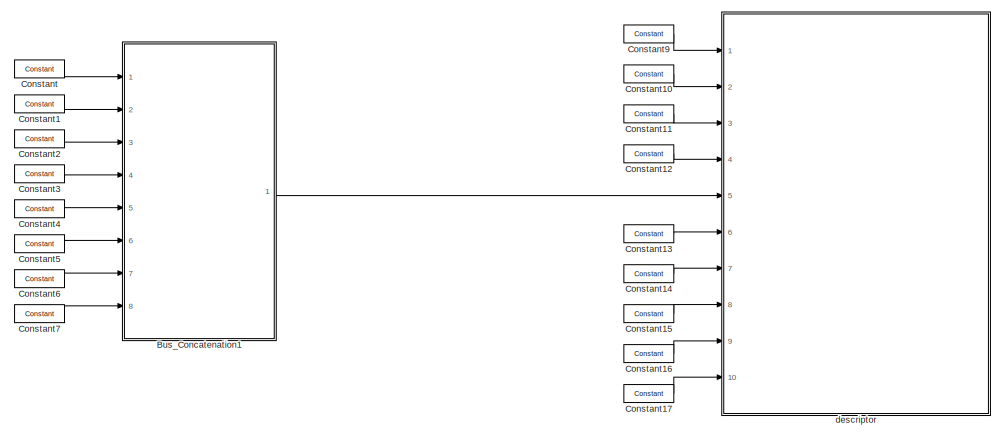
[diagram: root canvas - part 1/2, full width, top band]
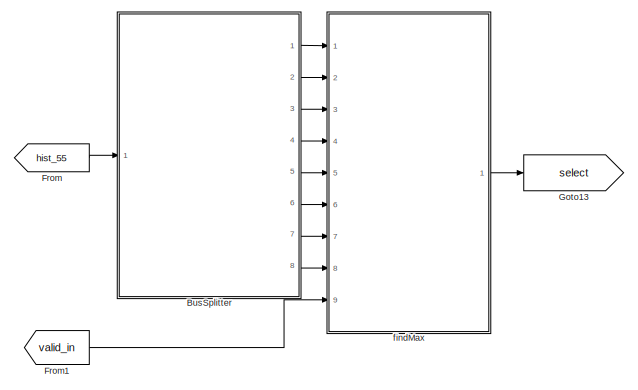
[diagram: root canvas - part 2/2, bottom right region]
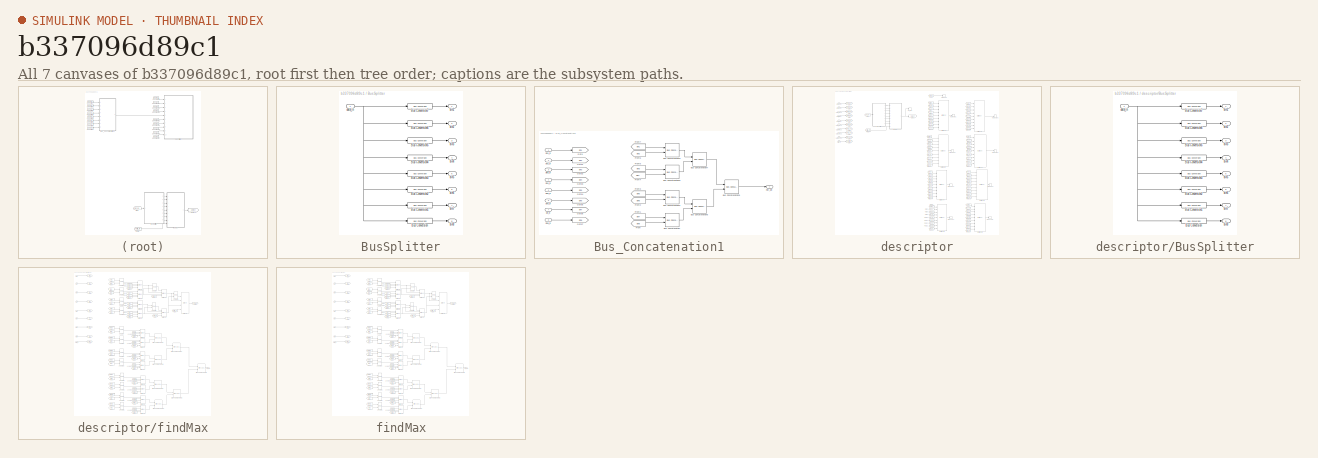
[diagram: thumbnail index - all 7 canvases of the model, root first then tree order]
MODEL slx_b337096d89c1
KIND model
CONFIG AbsTol = auto
CONFIG FixedStep = auto
CONFIG InitFcn = %% DSPBuilder Start\nalt_dspbuilder_update_model(bdroot)\n%% DSPBuilder End\n
CONFIG MaxStep = auto
CONFIG MinStep = auto
CONFIG RelTol = 1e-3
CONFIG SampleTimeConstraint = Unconstrained
CONFIG Solver = ode45
CONFIG SolverMode = Auto
CONFIG SolverName = ode45
CONFIG StartTime = 0.0
CONFIG StopTime = 10.0
BLOCK [SubSystem] BusSplitter
  Ports = [1, 8]
  RequestExecContextInheritance = off
BLOCK [Reference] BusSplitter/Bus Conversion  REF=allblocks_alteradspbuilder2/Bus Conversion
  BusType = Unsigned Integer
  Ports = [1, 1]
  SourceBlock = allblocks_alteradspbuilder2/Bus Conversion
  SourceType = Bus Conversion AlteraBlockset
  bitToConnectToOutputLSB = 0
  bwl = 16
  bwr = 1
  ibwl = 128
  ibwr = 1
  pipeline_display = 0
  round = off
  saturate = off
BLOCK [Reference] BusSplitter/Bus Conversion1  REF=allblocks_alteradspbuilder2/Bus Conversion
  BusType = Unsigned Integer
  Ports = [1, 1]
  SourceBlock = allblocks_alteradspbuilder2/Bus Conversion
  SourceType = Bus Conversion AlteraBlockset
  bitToConnectToOutputLSB = 16
  bwl = 16
  bwr = 1
  ibwl = 128
  ibwr = 1
  pipeline_display = 0
  round = off
  saturate = off
BLOCK [Reference] BusSplitter/Bus Conversion2  REF=allblocks_alteradspbuilder2/Bus Conversion
  BusType = Unsigned Integer
  Ports = [1, 1]
  SourceBlock = allblocks_alteradspbuilder2/Bus Conversion
  SourceType = Bus Conversion AlteraBlockset
  bitToConnectToOutputLSB = 32
  bwl = 16
  bwr = 1
  ibwl = 128
  ibwr = 1
  pipeline_display = 0
  round = off
  saturate = off
BLOCK [Reference] BusSplitter/Bus Conversion3  REF=allblocks_alteradspbuilder2/Bus Conversion
  BusType = Unsigned Integer
  Ports = [1, 1]
  SourceBlock = allblocks_alteradspbuilder2/Bus Conversion
  SourceType = Bus Conversion AlteraBlockset
  bitToConnectToOutputLSB = 48
  bwl = 16
  bwr = 1
  ibwl = 128
  ibwr = 1
  pipeline_display = 0
  round = off
  saturate = off
BLOCK [Reference] BusSplitter/Bus Conversion4  REF=allblocks_alteradspbuilder2/Bus Conversion
  BusType = Unsigned Integer
  Ports = [1, 1]
  SourceBlock = allblocks_alteradspbuilder2/Bus Conversion
  SourceType = Bus Conversion AlteraBlockset
  bitToConnectToOutputLSB = 64
  bwl = 16
  bwr = 1
  ibwl = 128
  ibwr = 1
  pipeline_display = 0
  round = off
  saturate = off
BLOCK [Reference] BusSplitter/Bus Conversion5  REF=allblocks_alteradspbuilder2/Bus Conversion
  BusType = Unsigned Integer
  Ports = [1, 1]
  SourceBlock = allblocks_alteradspbuilder2/Bus Conversion
  SourceType = Bus Conversion AlteraBlockset
  bitToConnectToOutputLSB = 80
  bwl = 16
  bwr = 1
  ibwl = 128
  ibwr = 1
  pipeline_display = 0
  round = off
  saturate = off
BLOCK [Reference] BusSplitter/Bus Conversion6  REF=allblocks_alteradspbuilder2/Bus Conversion
  BusType = Unsigned Integer
  Ports = [1, 1]
  SourceBlock = allblocks_alteradspbuilder2/Bus Conversion
  SourceType = Bus Conversion AlteraBlockset
  bitToConnectToOutputLSB = 96
  bwl = 16
  bwr = 1
  ibwl = 128
  ibwr = 1
  pipeline_display = 0
  round = off
  saturate = off
BLOCK [Reference] BusSplitter/Bus Conversion7  REF=allblocks_alteradspbuilder2/Bus Conversion
  BusType = Unsigned Integer
  Ports = [1, 1]
  SourceBlock = allblocks_alteradspbuilder2/Bus Conversion
  SourceType = Bus Conversion AlteraBlockset
  bitToConnectToOutputLSB = 112
  bwl = 16
  bwr = 1
  ibwl = 128
  ibwr = 1
  pipeline_display = 0
  round = off
  saturate = off
BLOCK [Outport] BusSplitter/bin1
  IconDisplay = Port number
BLOCK [Outport] BusSplitter/bin2
  IconDisplay = Port number
  Port = 2
BLOCK [Outport] BusSplitter/bin3
  IconDisplay = Port number
  Port = 3
BLOCK [Outport] BusSplitter/bin4
  IconDisplay = Port number
  Port = 4
BLOCK [Outport] BusSplitter/bin5
  IconDisplay = Port number
  Port = 5
BLOCK [Outport] BusSplitter/bin6
  IconDisplay = Port number
  Port = 6
BLOCK [Outport] BusSplitter/bin7
  IconDisplay = Port number
  Port = 7
BLOCK [Outport] BusSplitter/bin8
  IconDisplay = Port number
  Port = 8
BLOCK [Inport] BusSplitter/data_in
  IconDisplay = Port number
BLOCK [SubSystem] Bus_Concatenation1
  Ports = [8, 1]
  RequestExecContextInheritance = off
BLOCK [Reference] Bus_Concatenation1/Bus Concatenation  REF=allblocks_alteradspbuilder2/Bus Concatenation
  Ports = [2, 1]
  SourceBlock = allblocks_alteradspbuilder2/Bus Concatenation
  SourceType = Bus Concatenate AlteraBlockset
  awidth = 16
  bwidth = 16
  isSigned = off
  pipeline_display = 0
BLOCK [Reference] Bus_Concatenation1/Bus Concatenation1  REF=allblocks_alteradspbuilder2/Bus Concatenation
  Ports = [2, 1]
  SourceBlock = allblocks_alteradspbuilder2/Bus Concatenation
  SourceType = Bus Concatenate AlteraBlockset
  awidth = 16
  bwidth = 16
  isSigned = off
  pipeline_display = 0
BLOCK [Reference] Bus_Concatenation1/Bus Concatenation2  REF=allblocks_alteradspbuilder2/Bus Concatenation
  Ports = [2, 1]
  SourceBlock = allblocks_alteradspbuilder2/Bus Concatenation
  SourceType = Bus Concatenate AlteraBlockset
  awidth = 16
  bwidth = 16
  isSigned = off
  pipeline_display = 0
BLOCK [Reference] Bus_Concatenation1/Bus Concatenation3  REF=allblocks_alteradspbuilder2/Bus Concatenation
  Ports = [2, 1]
  SourceBlock = allblocks_alteradspbuilder2/Bus Concatenation
  SourceType = Bus Concatenate AlteraBlockset
  awidth = 16
  bwidth = 16
  isSigned = off
  pipeline_display = 0
BLOCK [Reference] Bus_Concatenation1/Bus Concatenation7  REF=allblocks_alteradspbuilder2/Bus Concatenation
  Ports = [2, 1]
  SourceBlock = allblocks_alteradspbuilder2/Bus Concatenation
  SourceType = Bus Concatenate AlteraBlockset
  awidth = 32
  bwidth = 32
  isSigned = off
  pipeline_display = 0
BLOCK [Reference] Bus_Concatenation1/Bus Concatenation8  REF=allblocks_alteradspbuilder2/Bus Concatenation
  Ports = [2, 1]
  SourceBlock = allblocks_alteradspbuilder2/Bus Concatenation
  SourceType = Bus Concatenate AlteraBlockset
  awidth = 32
  bwidth = 32
  isSigned = off
  pipeline_display = 0
BLOCK [Reference] Bus_Concatenation1/Bus Concatenation9  REF=allblocks_alteradspbuilder2/Bus Concatenation
  Ports = [2, 1]
  SourceBlock = allblocks_alteradspbuilder2/Bus Concatenation
  SourceType = Bus Concatenate AlteraBlockset
  awidth = 64
  bwidth = 64
  isSigned = off
  pipeline_display = 0
BLOCK [From] Bus_Concatenation1/From
  GotoTag = bin8
BLOCK [From] Bus_Concatenation1/From1
  GotoTag = bin7
BLOCK [From] Bus_Concatenation1/From2
  GotoTag = bin6
BLOCK [From] Bus_Concatenation1/From3
  GotoTag = bin5
BLOCK [From] Bus_Concatenation1/From4
  GotoTag = bin4
BLOCK [From] Bus_Concatenation1/From5
  GotoTag = bin3
BLOCK [From] Bus_Concatenation1/From6
  GotoTag = bin2
BLOCK [From] Bus_Concatenation1/From7
  GotoTag = bin1
BLOCK [Goto] Bus_Concatenation1/Goto
  GotoTag = bin1
BLOCK [Goto] Bus_Concatenation1/Goto1
  GotoTag = bin2
BLOCK [Goto] Bus_Concatenation1/Goto2
  GotoTag = bin3
BLOCK [Goto] Bus_Concatenation1/Goto3
  GotoTag = bin4
BLOCK [Goto] Bus_Concatenation1/Goto4
  GotoTag = bin5
BLOCK [Goto] Bus_Concatenation1/Goto5
  GotoTag = bin6
BLOCK [Goto] Bus_Concatenation1/Goto6
  GotoTag = bin7
BLOCK [Goto] Bus_Concatenation1/Goto7
  GotoTag = bin8
BLOCK [Inport] Bus_Concatenation1/biin3_in
  IconDisplay = Port number
  Port = 3
BLOCK [Inport] Bus_Concatenation1/bin1_in
  IconDisplay = Port number
BLOCK [Inport] Bus_Concatenation1/bin2_in
  IconDisplay = Port number
  Port = 2
BLOCK [Inport] Bus_Concatenation1/bin4_in
  IconDisplay = Port number
  Port = 4
BLOCK [Inport] Bus_Concatenation1/bin5_in
  IconDisplay = Port number
  Port = 5
BLOCK [Inport] Bus_Concatenation1/bin6_in
  IconDisplay = Port number
  Port = 6
BLOCK [Inport] Bus_Concatenation1/bin8_in
  IconDisplay = Port number
  Port = 8
BLOCK [Inport] Bus_Concatenation1/bin_in
  IconDisplay = Port number
  Port = 7
BLOCK [Outport] Bus_Concatenation1/hist_bin
  IconDisplay = Port number
BLOCK [Reference] Constant  REF=allblocks_alteradspbuilder2/Constant
  BusType = Unsigned Integer
  Ports = [0, 1]
  SourceBlock = allblocks_alteradspbuilder2/Constant
  SourceType = Constant AlteraBlockset
  SpecifyClock = off
  allowFloatingPointOverride = on
  bwl = 8
  bwr = 0
  logFile = <userpath>\Desktop\final_sift_fpga\tb_test\test_Constant.fixedpointlog
  logOutputs = off
  mask_cst = 1
  roundMode = Truncate
  satMode = Wrap
BLOCK [Reference] Constant1  REF=allblocks_alteradspbuilder2/Constant
  BusType = Unsigned Integer
  Ports = [0, 1]
  SourceBlock = allblocks_alteradspbuilder2/Constant
  SourceType = Constant AlteraBlockset
  SpecifyClock = off
  allowFloatingPointOverride = on
  bwl = 8
  bwr = 0
  logFile = <userpath>\Desktop\final_sift_fpga\tb_test\test_Constant1.fixedpointlog
  logOutputs = off
  mask_cst = 2
  roundMode = Truncate
  satMode = Wrap
BLOCK [Reference] Constant10  REF=allblocks_alteradspbuilder2/Constant
  BusType = Unsigned Integer
  Ports = [0, 1]
  SourceBlock = allblocks_alteradspbuilder2/Constant
  SourceType = Constant AlteraBlockset
  SpecifyClock = off
  allowFloatingPointOverride = on
  bwl = 8
  bwr = 0
  logFile = <userpath>\Desktop\final_sift_fpga\tb_test\test_Constant10.fixedpointlog
  logOutputs = off
  mask_cst = 2
  roundMode = Truncate
  satMode = Wrap
BLOCK [Reference] Constant11  REF=allblocks_alteradspbuilder2/Constant
  BusType = Unsigned Integer
  Ports = [0, 1]
  SourceBlock = allblocks_alteradspbuilder2/Constant
  SourceType = Constant AlteraBlockset
  SpecifyClock = off
  allowFloatingPointOverride = on
  bwl = 8
  bwr = 0
  logFile = <userpath>\Desktop\final_sift_fpga\tb_test\test_Constant11.fixedpointlog
  logOutputs = off
  mask_cst = 1
  roundMode = Truncate
  satMode = Wrap
BLOCK [Reference] Constant12  REF=allblocks_alteradspbuilder2/Constant
  BusType = Unsigned Integer
  Ports = [0, 1]
  SourceBlock = allblocks_alteradspbuilder2/Constant
  SourceType = Constant AlteraBlockset
  SpecifyClock = off
  allowFloatingPointOverride = on
  bwl = 8
  bwr = 0
  logFile = <userpath>\Desktop\final_sift_fpga\tb_test\test_Constant12.fixedpointlog
  logOutputs = off
  mask_cst = 4
  roundMode = Truncate
  satMode = Wrap
BLOCK [Reference] Constant13  REF=allblocks_alteradspbuilder2/Constant
  BusType = Unsigned Integer
  Ports = [0, 1]
  SourceBlock = allblocks_alteradspbuilder2/Constant
  SourceType = Constant AlteraBlockset
  SpecifyClock = off
  allowFloatingPointOverride = on
  bwl = 8
  bwr = 0
  logFile = <userpath>\Desktop\final_sift_fpga\tb_test\test_Constant13.fixedpointlog
  logOutputs = off
  mask_cst = 0
  roundMode = Truncate
  satMode = Wrap
BLOCK [Reference] Constant14  REF=allblocks_alteradspbuilder2/Constant
  BusType = Unsigned Integer
  Ports = [0, 1]
  SourceBlock = allblocks_alteradspbuilder2/Constant
  SourceType = Constant AlteraBlockset
  SpecifyClock = off
  allowFloatingPointOverride = on
  bwl = 8
  bwr = 0
  logFile = <userpath>\Desktop\final_sift_fpga\tb_test\test_Constant14.fixedpointlog
  logOutputs = off
  mask_cst = 5
  roundMode = Truncate
  satMode = Wrap
BLOCK [Reference] Constant15  REF=allblocks_alteradspbuilder2/Constant
  BusType = Unsigned Integer
  Ports = [0, 1]
  SourceBlock = allblocks_alteradspbuilder2/Constant
  SourceType = Constant AlteraBlockset
  SpecifyClock = off
  allowFloatingPointOverride = on
  bwl = 8
  bwr = 0
  logFile = <userpath>\Desktop\final_sift_fpga\tb_test\test_Constant15.fixedpointlog
  logOutputs = off
  mask_cst = 6
  roundMode = Truncate
  satMode = Wrap
BLOCK [Reference] Constant16  REF=allblocks_alteradspbuilder2/Constant
  BusType = Unsigned Integer
  Ports = [0, 1]
  SourceBlock = allblocks_alteradspbuilder2/Constant
  SourceType = Constant AlteraBlockset
  SpecifyClock = off
  allowFloatingPointOverride = on
  bwl = 8
  bwr = 0
  logFile = <userpath>\Desktop\final_sift_fpga\tb_test\test_Constant16.fixedpointlog
  logOutputs = off
  mask_cst = 7
  roundMode = Truncate
  satMode = Wrap
BLOCK [Reference] Constant17  REF=allblocks_alteradspbuilder2/Constant
  BusType = Single Bit
  Ports = [0, 1]
  SourceBlock = allblocks_alteradspbuilder2/Constant
  SourceType = Constant AlteraBlockset
  SpecifyClock = off
  allowFloatingPointOverride = on
  bwl = 8
  bwr = 0
  logFile = <userpath>\Desktop\final_sift_fpga\tb_test\test_Constant17.fixedpointlog
  logOutputs = off
  mask_cst = 1
  roundMode = Truncate
  satMode = Wrap
BLOCK [Reference] Constant2  REF=allblocks_alteradspbuilder2/Constant
  BusType = Unsigned Integer
  Ports = [0, 1]
  SourceBlock = allblocks_alteradspbuilder2/Constant
  SourceType = Constant AlteraBlockset
  SpecifyClock = off
  allowFloatingPointOverride = on
  bwl = 8
  bwr = 0
  logFile = <userpath>\Desktop\final_sift_fpga\tb_test\test_Constant2.fixedpointlog
  logOutputs = off
  mask_cst = 3
  roundMode = Truncate
  satMode = Wrap
BLOCK [Reference] Constant3  REF=allblocks_alteradspbuilder2/Constant
  BusType = Unsigned Integer
  Ports = [0, 1]
  SourceBlock = allblocks_alteradspbuilder2/Constant
  SourceType = Constant AlteraBlockset
  SpecifyClock = off
  allowFloatingPointOverride = on
  bwl = 8
  bwr = 0
  logFile = <userpath>\Desktop\final_sift_fpga\tb_test\test_Constant3.fixedpointlog
  logOutputs = off
  mask_cst = 4
  roundMode = Truncate
  satMode = Wrap
BLOCK [Reference] Constant4  REF=allblocks_alteradspbuilder2/Constant
  BusType = Unsigned Integer
  Ports = [0, 1]
  SourceBlock = allblocks_alteradspbuilder2/Constant
  SourceType = Constant AlteraBlockset
  SpecifyClock = off
  allowFloatingPointOverride = on
  bwl = 8
  bwr = 0
  logFile = <userpath>\Desktop\final_sift_fpga\tb_test\test_Constant4.fixedpointlog
  logOutputs = off
  mask_cst = 5
  roundMode = Truncate
  satMode = Wrap
BLOCK [Reference] Constant5  REF=allblocks_alteradspbuilder2/Constant
  BusType = Unsigned Integer
  Ports = [0, 1]
  SourceBlock = allblocks_alteradspbuilder2/Constant
  SourceType = Constant AlteraBlockset
  SpecifyClock = off
  allowFloatingPointOverride = on
  bwl = 8
  bwr = 0
  logFile = <userpath>\Desktop\final_sift_fpga\tb_test\test_Constant5.fixedpointlog
  logOutputs = off
  mask_cst = 1
  roundMode = Truncate
  satMode = Wrap
BLOCK [Reference] Constant6  REF=allblocks_alteradspbuilder2/Constant
  BusType = Unsigned Integer
  Ports = [0, 1]
  SourceBlock = allblocks_alteradspbuilder2/Constant
  SourceType = Constant AlteraBlockset
  SpecifyClock = off
  allowFloatingPointOverride = on
  bwl = 8
  bwr = 0
  logFile = <userpath>\Desktop\final_sift_fpga\tb_test\test_Constant6.fixedpointlog
  logOutputs = off
  mask_cst = 1
  roundMode = Truncate
  satMode = Wrap
BLOCK [Reference] Constant7  REF=allblocks_alteradspbuilder2/Constant
  BusType = Unsigned Integer
  Ports = [0, 1]
  SourceBlock = allblocks_alteradspbuilder2/Constant
  SourceType = Constant AlteraBlockset
  SpecifyClock = off
  allowFloatingPointOverride = on
  bwl = 8
  bwr = 0
  logFile = <userpath>\Desktop\final_sift_fpga\tb_test\test_Constant7.fixedpointlog
  logOutputs = off
  mask_cst = 1
  roundMode = Truncate
  satMode = Wrap
BLOCK [Reference] Constant9  REF=allblocks_alteradspbuilder2/Constant
  BusType = Unsigned Integer
  Ports = [0, 1]
  SourceBlock = allblocks_alteradspbuilder2/Constant
  SourceType = Constant AlteraBlockset
  SpecifyClock = off
  allowFloatingPointOverride = on
  bwl = 8
  bwr = 0
  logFile = C:\test_Constant9.fixedpointlog
  logOutputs = off
  mask_cst = 3
  roundMode = Truncate
  satMode = Wrap
BLOCK [From] From
  GotoTag = hist_55
BLOCK [From] From1
  GotoTag = valid_in
BLOCK [Goto] Goto13
  GotoTag = select
BLOCK [SubSystem] descriptor
  Ports = [10]
  RequestExecContextInheritance = off
BLOCK [SubSystem] descriptor/BusSplitter
  Ports = [1, 8]
  RequestExecContextInheritance = off
BLOCK [Reference] descriptor/BusSplitter/Bus Conversion  REF=allblocks_alteradspbuilder2/Bus Conversion
  BusType = Unsigned Integer
  Ports = [1, 1]
  SourceBlock = allblocks_alteradspbuilder2/Bus Conversion
  SourceType = Bus Conversion AlteraBlockset
  bitToConnectToOutputLSB = 0
  bwl = 16
  bwr = 1
  ibwl = 128
  ibwr = 1
  pipeline_display = 0
  round = off
  saturate = off
BLOCK [Reference] descriptor/BusSplitter/Bus Conversion1  REF=allblocks_alteradspbuilder2/Bus Conversion
  BusType = Unsigned Integer
  Ports = [1, 1]
  SourceBlock = allblocks_alteradspbuilder2/Bus Conversion
  SourceType = Bus Conversion AlteraBlockset
  bitToConnectToOutputLSB = 16
  bwl = 16
  bwr = 1
  ibwl = 128
  ibwr = 1
  pipeline_display = 0
  round = off
  saturate = off
BLOCK [Reference] descriptor/BusSplitter/Bus Conversion2  REF=allblocks_alteradspbuilder2/Bus Conversion
  BusType = Unsigned Integer
  Ports = [1, 1]
  SourceBlock = allblocks_alteradspbuilder2/Bus Conversion
  SourceType = Bus Conversion AlteraBlockset
  bitToConnectToOutputLSB = 32
  bwl = 16
  bwr = 1
  ibwl = 128
  ibwr = 1
  pipeline_display = 0
  round = off
  saturate = off
BLOCK [Reference] descriptor/BusSplitter/Bus Conversion3  REF=allblocks_alteradspbuilder2/Bus Conversion
  BusType = Unsigned Integer
  Ports = [1, 1]
  SourceBlock = allblocks_alteradspbuilder2/Bus Conversion
  SourceType = Bus Conversion AlteraBlockset
  bitToConnectToOutputLSB = 48
  bwl = 16
  bwr = 1
  ibwl = 128
  ibwr = 1
  pipeline_display = 0
  round = off
  saturate = off
BLOCK [Reference] descriptor/BusSplitter/Bus Conversion4  REF=allblocks_alteradspbuilder2/Bus Conversion
  BusType = Unsigned Integer
  Ports = [1, 1]
  SourceBlock = allblocks_alteradspbuilder2/Bus Conversion
  SourceType = Bus Conversion AlteraBlockset
  bitToConnectToOutputLSB = 64
  bwl = 16
  bwr = 1
  ibwl = 128
  ibwr = 1
  pipeline_display = 0
  round = off
  saturate = off
BLOCK [Reference] descriptor/BusSplitter/Bus Conversion5  REF=allblocks_alteradspbuilder2/Bus Conversion
  BusType = Unsigned Integer
  Ports = [1, 1]
  SourceBlock = allblocks_alteradspbuilder2/Bus Conversion
  SourceType = Bus Conversion AlteraBlockset
  bitToConnectToOutputLSB = 80
  bwl = 16
  bwr = 1
  ibwl = 128
  ibwr = 1
  pipeline_display = 0
  round = off
  saturate = off
BLOCK [Reference] descriptor/BusSplitter/Bus Conversion6  REF=allblocks_alteradspbuilder2/Bus Conversion
  BusType = Unsigned Integer
  Ports = [1, 1]
  SourceBlock = allblocks_alteradspbuilder2/Bus Conversion
  SourceType = Bus Conversion AlteraBlockset
  bitToConnectToOutputLSB = 96
  bwl = 16
  bwr = 1
  ibwl = 128
  ibwr = 1
  pipeline_display = 0
  round = off
  saturate = off
BLOCK [Reference] descriptor/BusSplitter/Bus Conversion7  REF=allblocks_alteradspbuilder2/Bus Conversion
  BusType = Unsigned Integer
  Ports = [1, 1]
  SourceBlock = allblocks_alteradspbuilder2/Bus Conversion
  SourceType = Bus Conversion AlteraBlockset
  bitToConnectToOutputLSB = 112
  bwl = 16
  bwr = 1
  ibwl = 128
  ibwr = 1
  pipeline_display = 0
  round = off
  saturate = off
BLOCK [Outport] descriptor/BusSplitter/bin1
  IconDisplay = Port number
BLOCK [Outport] descriptor/BusSplitter/bin2
  IconDisplay = Port number
  Port = 2
BLOCK [Outport] descriptor/BusSplitter/bin3
  IconDisplay = Port number
  Port = 3
BLOCK [Outport] descriptor/BusSplitter/bin4
  IconDisplay = Port number
  Port = 4
BLOCK [Outport] descriptor/BusSplitter/bin5
  IconDisplay = Port number
  Port = 5
BLOCK [Outport] descriptor/BusSplitter/bin6
  IconDisplay = Port number
  Port = 6
BLOCK [Outport] descriptor/BusSplitter/bin7
  IconDisplay = Port number
  Port = 7
BLOCK [Outport] descriptor/BusSplitter/bin8
  IconDisplay = Port number
  Port = 8
BLOCK [Inport] descriptor/BusSplitter/data_in
  IconDisplay = Port number
BLOCK [From] descriptor/From
  GotoTag = hist_55
BLOCK [From] descriptor/From1
  GotoTag = valid_in
BLOCK [From] descriptor/From10
  GotoTag = select
BLOCK [From] descriptor/From100
  GotoTag = hist_105
BLOCK [From] descriptor/From101
  GotoTag = hist_100
BLOCK [From] descriptor/From102
  GotoTag = hist_50
BLOCK [From] descriptor/From103
  GotoTag = hist_00
BLOCK [From] descriptor/From104
  GotoTag = hist_05
BLOCK [From] descriptor/From105
  GotoTag = hist_010
BLOCK [From] descriptor/From106
  GotoTag = hist_510
BLOCK [From] descriptor/From108
  GotoTag = hist_105
BLOCK [From] descriptor/From109
  GotoTag = hist_100
BLOCK [From] descriptor/From11
  GotoTag = select
BLOCK [From] descriptor/From110
  GotoTag = hist_50
BLOCK [From] descriptor/From111
  GotoTag = hist_00
BLOCK [From] descriptor/From112
  GotoTag = hist_05
BLOCK [From] descriptor/From113
  GotoTag = hist_010
BLOCK [From] descriptor/From114
  GotoTag = hist_510
BLOCK [From] descriptor/From115
  GotoTag = hist_1010
BLOCK [From] descriptor/From117
  GotoTag = hist_105
BLOCK [From] descriptor/From118
  GotoTag = hist_100
BLOCK [From] descriptor/From119
  GotoTag = hist_50
BLOCK [From] descriptor/From12
  GotoTag = select
BLOCK [From] descriptor/From120
  GotoTag = hist_00
BLOCK [From] descriptor/From121
  GotoTag = hist_05
BLOCK [From] descriptor/From122
  GotoTag = hist_010
BLOCK [From] descriptor/From123
  GotoTag = hist_510
BLOCK [From] descriptor/From124
  GotoTag = hist_1010
BLOCK [From] descriptor/From126
  GotoTag = hist_105
BLOCK [From] descriptor/From127
  GotoTag = hist_100
BLOCK [From] descriptor/From128
  GotoTag = hist_50
BLOCK [From] descriptor/From129
  GotoTag = hist_00
BLOCK [From] descriptor/From13
  GotoTag = select
BLOCK [From] descriptor/From130
  GotoTag = hist_05
BLOCK [From] descriptor/From131
  GotoTag = hist_010
BLOCK [From] descriptor/From132
  GotoTag = hist_510
BLOCK [From] descriptor/From133
  GotoTag = hist_1010
BLOCK [From] descriptor/From135
  GotoTag = hist_105
BLOCK [From] descriptor/From136
  GotoTag = hist_100
BLOCK [From] descriptor/From137
  GotoTag = hist_50
BLOCK [From] descriptor/From138
  GotoTag = hist_00
BLOCK [From] descriptor/From139
  GotoTag = hist_05
BLOCK [From] descriptor/From14
  GotoTag = select
BLOCK [From] descriptor/From140
  GotoTag = hist_010
BLOCK [From] descriptor/From141
  GotoTag = hist_510
BLOCK [From] descriptor/From142
  GotoTag = hist_1010
BLOCK [From] descriptor/From15
  GotoTag = select
BLOCK [From] descriptor/From16
  GotoTag = select
BLOCK [From] descriptor/From17
  GotoTag = select
BLOCK [From] descriptor/From72
  GotoTag = hist_1010
BLOCK [From] descriptor/From73
  GotoTag = hist_105
BLOCK [From] descriptor/From74
  GotoTag = hist_100
BLOCK [From] descriptor/From75
  GotoTag = hist_50
BLOCK [From] descriptor/From76
  GotoTag = hist_00
BLOCK [From] descriptor/From77
  GotoTag = hist_05
BLOCK [From] descriptor/From78
  GotoTag = hist_010
BLOCK [From] descriptor/From79
  GotoTag = hist_510
BLOCK [From] descriptor/From80
  GotoTag = hist_55
BLOCK [From] descriptor/From81
  GotoTag = hist_1010
BLOCK [From] descriptor/From82
  GotoTag = hist_105
BLOCK [From] descriptor/From83
  GotoTag = hist_100
BLOCK [From] descriptor/From84
  GotoTag = hist_50
BLOCK [From] descriptor/From85
  GotoTag = hist_00
BLOCK [From] descriptor/From86
  GotoTag = hist_05
BLOCK [From] descriptor/From87
  GotoTag = hist_010
BLOCK [From] descriptor/From88
  GotoTag = hist_510
BLOCK [From] descriptor/From90
  GotoTag = hist_1010
BLOCK [From] descriptor/From91
  GotoTag = hist_105
BLOCK [From] descriptor/From92
  GotoTag = hist_100
BLOCK [From] descriptor/From93
  GotoTag = hist_50
BLOCK [From] descriptor/From94
  GotoTag = hist_00
BLOCK [From] descriptor/From95
  GotoTag = hist_05
BLOCK [From] descriptor/From96
  GotoTag = hist_010
BLOCK [From] descriptor/From97
  GotoTag = hist_510
BLOCK [From] descriptor/From99
  GotoTag = hist_1010
BLOCK [Goto] descriptor/Goto
  GotoTag = hist_00
BLOCK [Goto] descriptor/Goto1
  GotoTag = hist_05
BLOCK [Goto] descriptor/Goto13
  GotoTag = select
BLOCK [Goto] descriptor/Goto2
  GotoTag = hist_010
BLOCK [Goto] descriptor/Goto3
  GotoTag = hist_50
BLOCK [Goto] descriptor/Goto4
  GotoTag = hist_55
BLOCK [Goto] descriptor/Goto5
  GotoTag = hist_510
BLOCK [Goto] descriptor/Goto6
  GotoTag = hist_100
BLOCK [Goto] descriptor/Goto7
  GotoTag = hist_105
BLOCK [Goto] descriptor/Goto8
  GotoTag = hist_1010
BLOCK [Goto] descriptor/Goto9
  GotoTag = valid_in
BLOCK [Reference] descriptor/Multiplexer1  REF=allblocks_alteradspbuilder2/Multiplexer
  Ports = [9, 1]
  SourceBlock = allblocks_alteradspbuilder2/Multiplexer
  SourceType = Multiplexer AlteraBlockset
  allowFloatingPointOverride = on
  logFile = <userpath>\Desktop\final_sift_fpga\tb_test\test_descriptor_Multiplexer1.fixedpointlog
  logOutputs = off
  numInputs = 8
  oneHot = off
  pipeline = 0
  pipeline_display = 0
  use_aclr = off
  use_ena = off
BLOCK [Reference] descriptor/Multiplexer2  REF=allblocks_alteradspbuilder2/Multiplexer
  Ports = [9, 1]
  SourceBlock = allblocks_alteradspbuilder2/Multiplexer
  SourceType = Multiplexer AlteraBlockset
  allowFloatingPointOverride = on
  logFile = <userpath>\Desktop\final_sift_fpga\tb_test\test_descriptor_Multiplexer2.fixedpointlog
  logOutputs = off
  numInputs = 8
  oneHot = off
  pipeline = 0
  pipeline_display = 0
  use_aclr = off
  use_ena = off
BLOCK [Reference] descriptor/Multiplexer4  REF=allblocks_alteradspbuilder2/Multiplexer
  Ports = [9, 1]
  SourceBlock = allblocks_alteradspbuilder2/Multiplexer
  SourceType = Multiplexer AlteraBlockset
  allowFloatingPointOverride = on
  logFile = <userpath>\Desktop\final_sift_fpga\tb_test\test_descriptor_Multiplexer4.fixedpointlog
  logOutputs = off
  numInputs = 8
  oneHot = off
  pipeline = 0
  pipeline_display = 0
  use_aclr = off
  use_ena = off
BLOCK [Reference] descriptor/Multiplexer5  REF=allblocks_alteradspbuilder2/Multiplexer
  Ports = [9, 1]
  SourceBlock = allblocks_alteradspbuilder2/Multiplexer
  SourceType = Multiplexer AlteraBlockset
  allowFloatingPointOverride = on
  logFile = <userpath>\Desktop\final_sift_fpga\tb_test\test_descriptor_Multiplexer5.fixedpointlog
  logOutputs = off
  numInputs = 8
  oneHot = off
  pipeline = 0
  pipeline_display = 0
  use_aclr = off
  use_ena = off
BLOCK [Reference] descriptor/Multiplexer6  REF=allblocks_alteradspbuilder2/Multiplexer
  Ports = [9, 1]
  SourceBlock = allblocks_alteradspbuilder2/Multiplexer
  SourceType = Multiplexer AlteraBlockset
  allowFloatingPointOverride = on
  logFile = <userpath>\Desktop\final_sift_fpga\tb_test\test_descriptor_Multiplexer6.fixedpointlog
  logOutputs = off
  numInputs = 8
  oneHot = off
  pipeline = 0
  pipeline_display = 0
  use_aclr = off
  use_ena = off
BLOCK [Reference] descriptor/Multiplexer7  REF=allblocks_alteradspbuilder2/Multiplexer
  Ports = [9, 1]
  SourceBlock = allblocks_alteradspbuilder2/Multiplexer
  SourceType = Multiplexer AlteraBlockset
  allowFloatingPointOverride = on
  logFile = <userpath>\Desktop\final_sift_fpga\tb_test\test_descriptor_Multiplexer7.fixedpointlog
  logOutputs = off
  numInputs = 8
  oneHot = off
  pipeline = 0
  pipeline_display = 0
  use_aclr = off
  use_ena = off
BLOCK [Reference] descriptor/Multiplexer8  REF=allblocks_alteradspbuilder2/Multiplexer
  Ports = [9, 1]
  SourceBlock = allblocks_alteradspbuilder2/Multiplexer
  SourceType = Multiplexer AlteraBlockset
  allowFloatingPointOverride = on
  logFile = <userpath>\Desktop\final_sift_fpga\tb_test\test_descriptor_Multiplexer8.fixedpointlog
  logOutputs = off
  numInputs = 8
  oneHot = off
  pipeline = 0
  pipeline_display = 0
  use_aclr = off
  use_ena = off
BLOCK [Reference] descriptor/Multiplexer9  REF=allblocks_alteradspbuilder2/Multiplexer
  Ports = [9, 1]
  SourceBlock = allblocks_alteradspbuilder2/Multiplexer
  SourceType = Multiplexer AlteraBlockset
  allowFloatingPointOverride = on
  logFile = <userpath>\Desktop\final_sift_fpga\tb_test\test_descriptor_Multiplexer9.fixedpointlog
  logOutputs = off
  numInputs = 8
  oneHot = off
  pipeline = 0
  pipeline_display = 0
  use_aclr = off
  use_ena = off
BLOCK [TimeScope] descriptor/Time Scope
  DefaultConfigurationName = spbscopes.TimeScopeBlockCfg
  NumInputPorts = 1
  Ports = [1]
  ScopeSpecificationString = spbscopes.TimeScopeBlockCfg('CurrentConfiguration', extmgr.ConfigurationSet(extmgr.Configuration('Core','General UI',true),extmgr.Configuration('Core','Source UI',true),extmgr.Configuration('Sources','WiredSimulink',true,'DataLoggingVariableName','ScopeData1'),extmgr.Configuration('Visuals','Time Domain',true,'DisplayPropertyDefaults',struct('MinYLimReal','4.19246e+33','MaxYLimReal','6.19246e+33',...<+1423ch>
  UserDataPersistent = on
BLOCK [TimeScope] descriptor/Time Scope1
  DefaultConfigurationName = spbscopes.TimeScopeBlockCfg
  NumInputPorts = 1
  Ports = [1]
  ScopeSpecificationString = spbscopes.TimeScopeBlockCfg('CurrentConfiguration', extmgr.ConfigurationSet(extmgr.Configuration('Core','General UI',true),extmgr.Configuration('Core','Source UI',true),extmgr.Configuration('Sources','WiredSimulink',true,'DataLoggingVariableName','ScopeData2'),extmgr.Configuration('Visuals','Time Domain',true,'DisplayPropertyDefaults',struct('MinYLimReal','-0.5','MaxYLimReal','4.5','YLabelReal','A...<+1361ch>
  UserDataPersistent = on
BLOCK [TimeScope] descriptor/Time Scope2
  DefaultConfigurationName = spbscopes.TimeScopeBlockCfg
  NumInputPorts = 1
  Ports = [1]
  ScopeSpecificationString = spbscopes.TimeScopeBlockCfg('CurrentConfiguration', extmgr.ConfigurationSet(extmgr.Configuration('Core','General UI',true),extmgr.Configuration('Core','Source UI',true),extmgr.Configuration('Sources','WiredSimulink',true,'DataLoggingVariableName','ScopeData3'),extmgr.Configuration('Visuals','Time Domain',true,'DisplayPropertyDefaults',struct('MinYLimReal','0.5','MaxYLimReal','5.5','YLabelReal','Am...<+1363ch>
  UserDataPersistent = on
BLOCK [TimeScope] descriptor/Time Scope3
  DefaultConfigurationName = spbscopes.TimeScopeBlockCfg
  NumInputPorts = 1
  Ports = [1]
  ScopeSpecificationString = spbscopes.TimeScopeBlockCfg('CurrentConfiguration', extmgr.ConfigurationSet(extmgr.Configuration('Core','General UI',true),extmgr.Configuration('Core','Source UI',true),extmgr.Configuration('Sources','WiredSimulink',true,'DataLoggingVariableName','ScopeData4'),extmgr.Configuration('Visuals','Time Domain',true,'DisplayPropertyDefaults',struct('MinYLimReal','1.5','MaxYLimReal','6.5','YLabelReal','Am...<+1364ch>
  UserDataPersistent = on
BLOCK [TimeScope] descriptor/Time Scope4
  DefaultConfigurationName = spbscopes.TimeScopeBlockCfg
  NumInputPorts = 1
  Ports = [1]
  ScopeSpecificationString = spbscopes.TimeScopeBlockCfg('CurrentConfiguration', extmgr.ConfigurationSet(extmgr.Configuration('Core','General UI',true),extmgr.Configuration('Core','Source UI',true),extmgr.Configuration('Sources','WiredSimulink',true,'DataLoggingVariableName','ScopeData5'),extmgr.Configuration('Visuals','Time Domain',true,'DisplayPropertyDefaults',struct('MinYLimReal','2.5','MaxYLimReal','7.5','YLabelReal','Am...<+1363ch>
  UserDataPersistent = on
BLOCK [TimeScope] descriptor/Time Scope5
  DefaultConfigurationName = spbscopes.TimeScopeBlockCfg
  NumInputPorts = 1
  Ports = [1]
  ScopeSpecificationString = spbscopes.TimeScopeBlockCfg('CurrentConfiguration', extmgr.ConfigurationSet(extmgr.Configuration('Core','General UI',true),extmgr.Configuration('Core','Source UI',true),extmgr.Configuration('Sources','WiredSimulink',true,'DataLoggingVariableName','ScopeData6'),extmgr.Configuration('Visuals','Time Domain',true,'DisplayPropertyDefaults',struct('MinYLimReal','-0.5','MaxYLimReal','4.5','YLabelReal','A...<+1362ch>
  UserDataPersistent = on
BLOCK [TimeScope] descriptor/Time Scope6
  DefaultConfigurationName = spbscopes.TimeScopeBlockCfg
  NumInputPorts = 1
  Ports = [1]
  ScopeSpecificationString = spbscopes.TimeScopeBlockCfg('CurrentConfiguration', extmgr.ConfigurationSet(extmgr.Configuration('Core','General UI',true),extmgr.Configuration('Core','Source UI',true),extmgr.Configuration('Sources','WiredSimulink',true,'DataLoggingVariableName','ScopeData7'),extmgr.Configuration('Visuals','Time Domain',true,'DisplayPropertyDefaults',struct('MinYLimReal','0.5','MaxYLimReal','5.5','YLabelReal','Am...<+1365ch>
  UserDataPersistent = on
BLOCK [TimeScope] descriptor/Time Scope7
  DefaultConfigurationName = spbscopes.TimeScopeBlockCfg
  NumInputPorts = 1
  Ports = [1]
  ScopeSpecificationString = spbscopes.TimeScopeBlockCfg('CurrentConfiguration', extmgr.ConfigurationSet(extmgr.Configuration('Core','General UI',true),extmgr.Configuration('Core','Source UI',true),extmgr.Configuration('Sources','WiredSimulink',true,'DataLoggingVariableName','ScopeData8'),extmgr.Configuration('Visuals','Time Domain',true,'DisplayPropertyDefaults',struct('MinYLimReal','1.5','MaxYLimReal','6.5','YLabelReal','Am...<+1365ch>
  UserDataPersistent = on
BLOCK [TimeScope] descriptor/Time Scope8
  DefaultConfigurationName = spbscopes.TimeScopeBlockCfg
  NumInputPorts = 1
  Ports = [1]
  ScopeSpecificationString = spbscopes.TimeScopeBlockCfg('CurrentConfiguration', extmgr.ConfigurationSet(extmgr.Configuration('Core','General UI',true),extmgr.Configuration('Core','Source UI',true),extmgr.Configuration('Sources','WiredSimulink',true,'DataLoggingVariableName','ScopeData9'),extmgr.Configuration('Visuals','Time Domain',true,'DisplayPropertyDefaults',struct('MinYLimReal','2.5','MaxYLimReal','7.5','YLabelReal','Am...<+1366ch>
  UserDataPersistent = on
BLOCK [TimeScope] descriptor/bin_max
  DefaultConfigurationName = spbscopes.TimeScopeBlockCfg
  NumInputPorts = 1
  Ports = [1]
  ScopeSpecificationString = spbscopes.TimeScopeBlockCfg('CurrentConfiguration', extmgr.ConfigurationSet(extmgr.Configuration('Core','General UI',true),extmgr.Configuration('Core','Source UI',true),extmgr.Configuration('Sources','WiredSimulink',true,'DataLoggingVariableName','ScopeData10'),extmgr.Configuration('Visuals','Time Domain',true,'DisplayPropertyDefaults',struct('MinYLimReal','-0.5','MaxYLimReal','4.5','YLabelReal','...<+1359ch>
  UserDataPersistent = on
BLOCK [Inport] descriptor/data_in00
  IconDisplay = Port number
BLOCK [Inport] descriptor/data_in010
  IconDisplay = Port number
  Port = 3
BLOCK [Inport] descriptor/data_in05
  IconDisplay = Port number
  Port = 2
BLOCK [Inport] descriptor/data_in100
  IconDisplay = Port number
  Port = 7
BLOCK [Inport] descriptor/data_in1010
  IconDisplay = Port number
  Port = 9
BLOCK [Inport] descriptor/data_in105
  IconDisplay = Port number
  Port = 8
BLOCK [Inport] descriptor/data_in50
  IconDisplay = Port number
  Port = 4
BLOCK [Inport] descriptor/data_in510
  IconDisplay = Port number
  Port = 6
BLOCK [Inport] descriptor/data_in55
  IconDisplay = Port number
  Port = 5
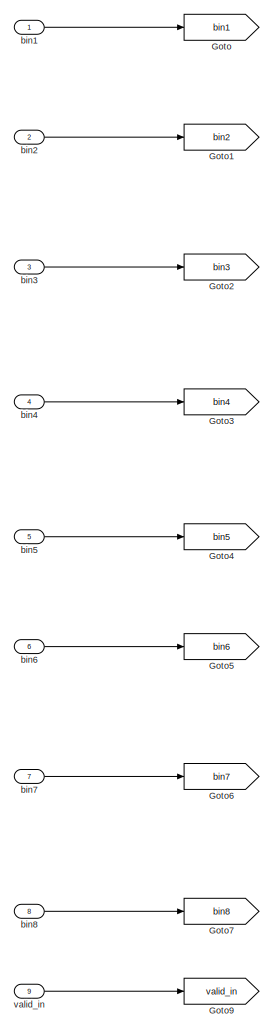
[diagram: descriptor/findMax - part 1/4, top left region]
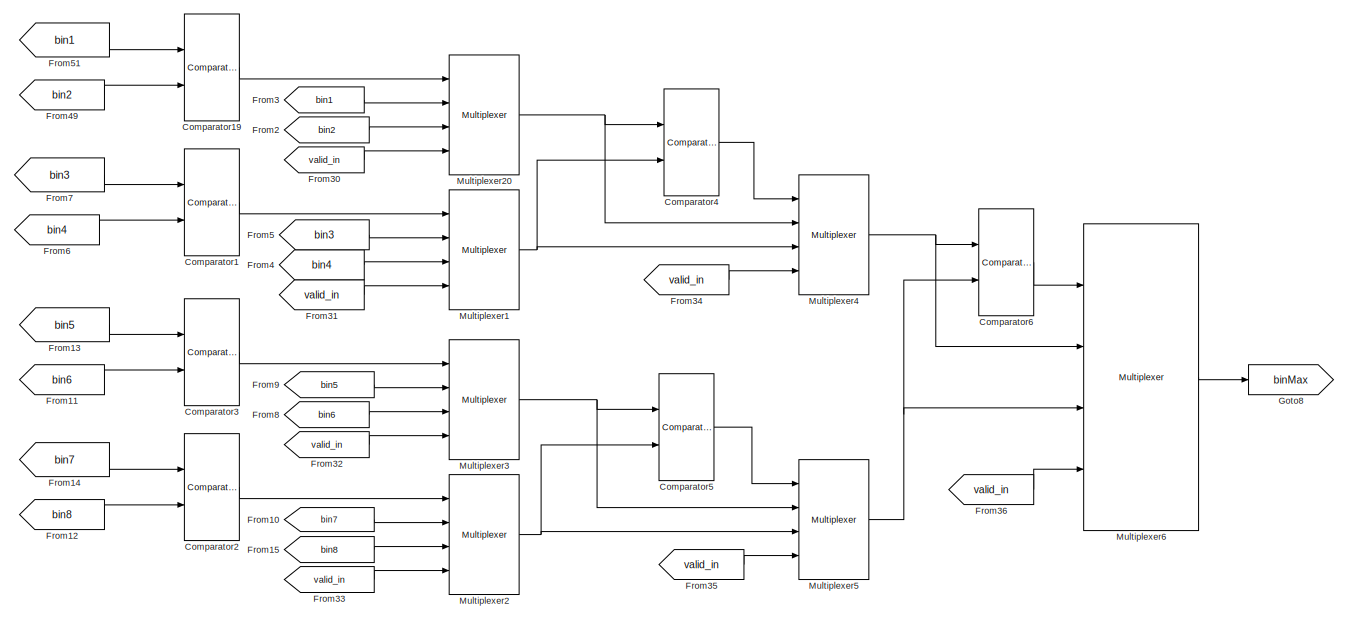
[diagram: descriptor/findMax - part 2/4, top center region]
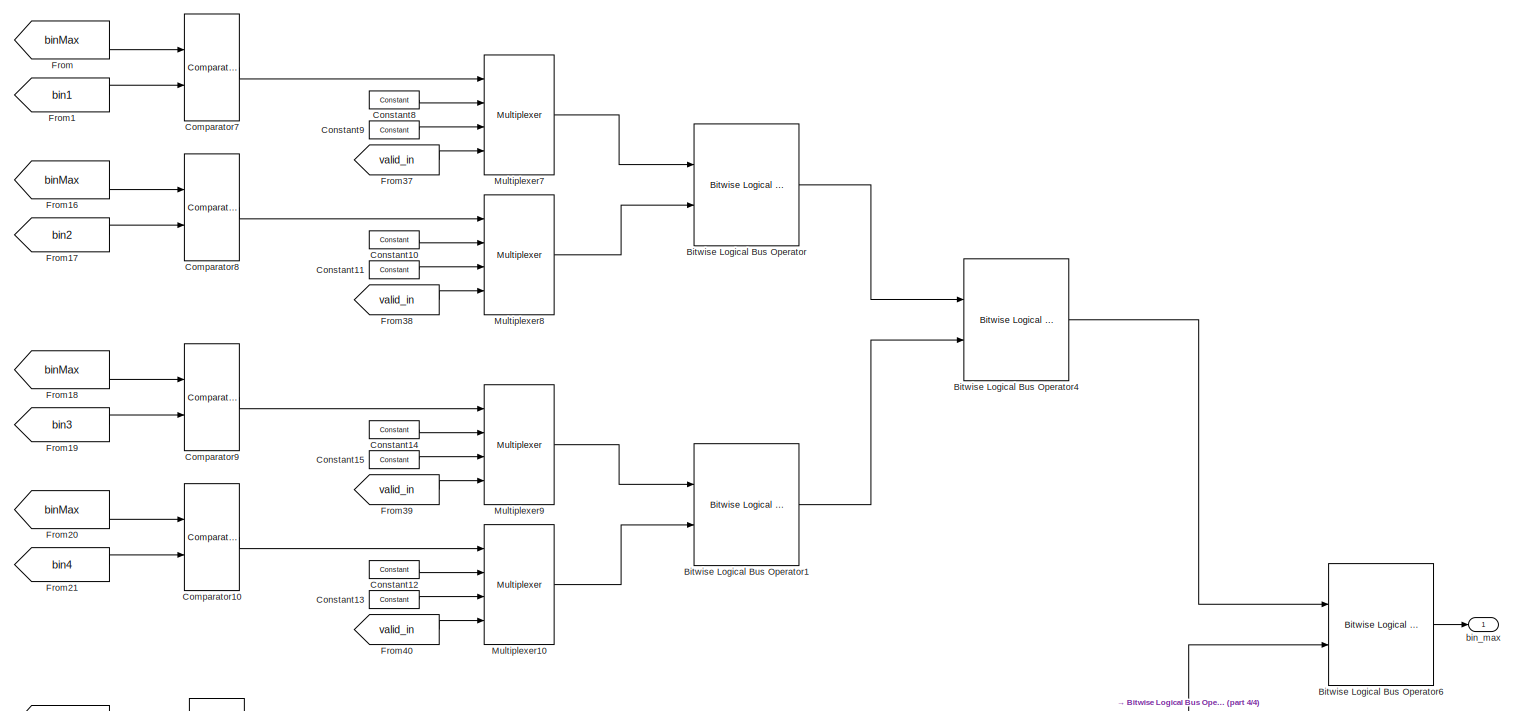
[diagram: descriptor/findMax - part 3/4, full width, middle band]
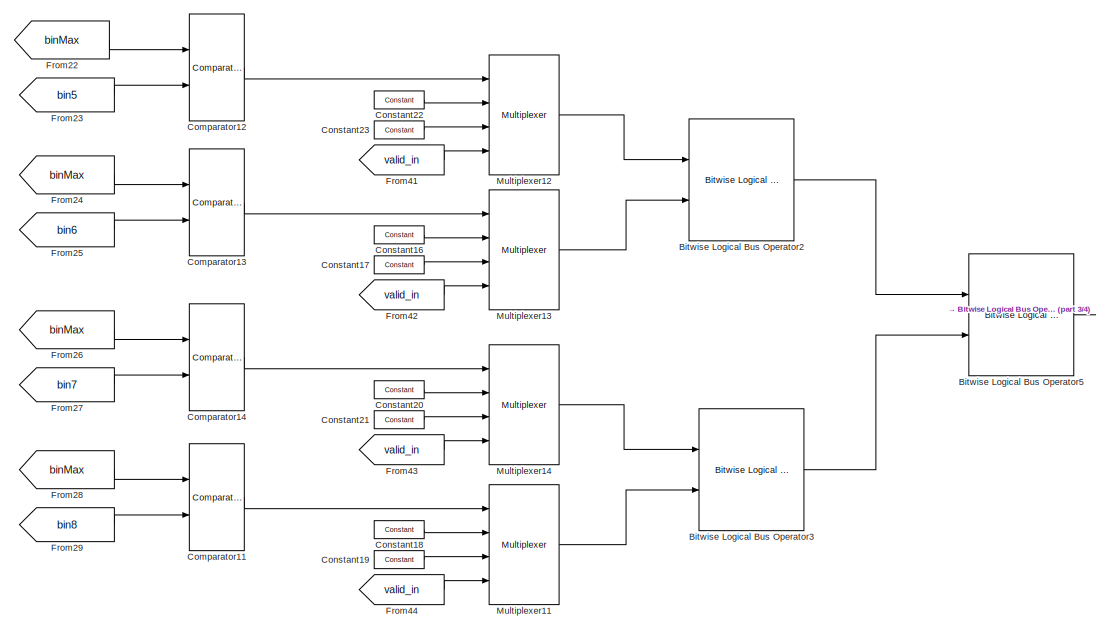
[diagram: descriptor/findMax - part 4/4, bottom center region]
BLOCK [SubSystem] descriptor/findMax
  Ports = [9, 1]
  RequestExecContextInheritance = off
BLOCK [Reference] descriptor/findMax/Bitwise Logical Bus Operator  REF=allblocks_alteradspbuilder2/Bitwise Logical Bus Operator
  BusType = Unsigned Integer
  LogicalOperator = OR
  Ports = [2, 1]
  SourceBlock = allblocks_alteradspbuilder2/Bitwise Logical Bus Operator
  SourceType = Bitwise Logical Bus Operator AlteraBlockset
  bwl = 3
  bwr = 0
  pipeline_display = 0
BLOCK [Reference] descriptor/findMax/Bitwise Logical Bus Operator1  REF=allblocks_alteradspbuilder2/Bitwise Logical Bus Operator
  BusType = Unsigned Integer
  LogicalOperator = OR
  Ports = [2, 1]
  SourceBlock = allblocks_alteradspbuilder2/Bitwise Logical Bus Operator
  SourceType = Bitwise Logical Bus Operator AlteraBlockset
  bwl = 3
  bwr = 0
  pipeline_display = 0
BLOCK [Reference] descriptor/findMax/Bitwise Logical Bus Operator2  REF=allblocks_alteradspbuilder2/Bitwise Logical Bus Operator
  BusType = Unsigned Integer
  LogicalOperator = OR
  Ports = [2, 1]
  SourceBlock = allblocks_alteradspbuilder2/Bitwise Logical Bus Operator
  SourceType = Bitwise Logical Bus Operator AlteraBlockset
  bwl = 3
  bwr = 0
  pipeline_display = 0
BLOCK [Reference] descriptor/findMax/Bitwise Logical Bus Operator3  REF=allblocks_alteradspbuilder2/Bitwise Logical Bus Operator
  BusType = Unsigned Integer
  LogicalOperator = OR
  Ports = [2, 1]
  SourceBlock = allblocks_alteradspbuilder2/Bitwise Logical Bus Operator
  SourceType = Bitwise Logical Bus Operator AlteraBlockset
  bwl = 3
  bwr = 0
  pipeline_display = 0
BLOCK [Reference] descriptor/findMax/Bitwise Logical Bus Operator4  REF=allblocks_alteradspbuilder2/Bitwise Logical Bus Operator
  BusType = Unsigned Integer
  LogicalOperator = OR
  Ports = [2, 1]
  SourceBlock = allblocks_alteradspbuilder2/Bitwise Logical Bus Operator
  SourceType = Bitwise Logical Bus Operator AlteraBlockset
  bwl = 3
  bwr = 0
  pipeline_display = 0
BLOCK [Reference] descriptor/findMax/Bitwise Logical Bus Operator5  REF=allblocks_alteradspbuilder2/Bitwise Logical Bus Operator
  BusType = Unsigned Integer
  LogicalOperator = OR
  Ports = [2, 1]
  SourceBlock = allblocks_alteradspbuilder2/Bitwise Logical Bus Operator
  SourceType = Bitwise Logical Bus Operator AlteraBlockset
  bwl = 3
  bwr = 0
  pipeline_display = 0
BLOCK [Reference] descriptor/findMax/Bitwise Logical Bus Operator6  REF=allblocks_alteradspbuilder2/Bitwise Logical Bus Operator
  BusType = Unsigned Integer
  LogicalOperator = OR
  Ports = [2, 1]
  SourceBlock = allblocks_alteradspbuilder2/Bitwise Logical Bus Operator
  SourceType = Bitwise Logical Bus Operator AlteraBlockset
  bwl = 3
  bwr = 0
  pipeline_display = 0
BLOCK [Reference] descriptor/findMax/Comparator1  REF=allblocks_alteradspbuilder2/Comparator
  Ports = [2, 1]
  SourceBlock = allblocks_alteradspbuilder2/Comparator
  SourceType = Comparator AlteraBlockset
  allowFloatingPointOverride = on
  direction = a < b
  logFile = <userpath>\Desktop\final_sift_fpga\tb_test\test_descriptor_findMax_Comparator1.fixedpointlog
  logOutputs = off
  pipeline_display = 0
BLOCK [Reference] descriptor/findMax/Comparator10  REF=allblocks_alteradspbuilder2/Comparator
  Ports = [2, 1]
  SourceBlock = allblocks_alteradspbuilder2/Comparator
  SourceType = Comparator AlteraBlockset
  allowFloatingPointOverride = on
  direction = a == b
  logFile = <userpath>\Desktop\final_sift_fpga\tb_test\test_descriptor_findMax_Comparator10.fixedpointlog
  logOutputs = off
  pipeline_display = 0
BLOCK [Reference] descriptor/findMax/Comparator11  REF=allblocks_alteradspbuilder2/Comparator
  Ports = [2, 1]
  SourceBlock = allblocks_alteradspbuilder2/Comparator
  SourceType = Comparator AlteraBlockset
  allowFloatingPointOverride = on
  direction = a == b
  logFile = <userpath>\Desktop\final_sift_fpga\tb_test\test_descriptor_findMax_Comparator11.fixedpointlog
  logOutputs = off
  pipeline_display = 0
BLOCK [Reference] descriptor/findMax/Comparator12  REF=allblocks_alteradspbuilder2/Comparator
  Ports = [2, 1]
  SourceBlock = allblocks_alteradspbuilder2/Comparator
  SourceType = Comparator AlteraBlockset
  allowFloatingPointOverride = on
  direction = a == b
  logFile = <userpath>\Desktop\final_sift_fpga\tb_test\test_descriptor_findMax_Comparator12.fixedpointlog
  logOutputs = off
  pipeline_display = 0
BLOCK [Reference] descriptor/findMax/Comparator13  REF=allblocks_alteradspbuilder2/Comparator
  Ports = [2, 1]
  SourceBlock = allblocks_alteradspbuilder2/Comparator
  SourceType = Comparator AlteraBlockset
  allowFloatingPointOverride = on
  direction = a == b
  logFile = <userpath>\Desktop\final_sift_fpga\tb_test\test_descriptor_findMax_Comparator13.fixedpointlog
  logOutputs = off
  pipeline_display = 0
BLOCK [Reference] descriptor/findMax/Comparator14  REF=allblocks_alteradspbuilder2/Comparator
  Ports = [2, 1]
  SourceBlock = allblocks_alteradspbuilder2/Comparator
  SourceType = Comparator AlteraBlockset
  allowFloatingPointOverride = on
  direction = a == b
  logFile = <userpath>\Desktop\final_sift_fpga\tb_test\test_descriptor_findMax_Comparator14.fixedpointlog
  logOutputs = off
  pipeline_display = 0
BLOCK [Reference] descriptor/findMax/Comparator19  REF=allblocks_alteradspbuilder2/Comparator
  Ports = [2, 1]
  SourceBlock = allblocks_alteradspbuilder2/Comparator
  SourceType = Comparator AlteraBlockset
  allowFloatingPointOverride = on
  direction = a < b
  logFile = <userpath>\Desktop\final_sift_fpga\tb_test\test_descriptor_findMax_Comparator19.fixedpointlog
  logOutputs = off
  pipeline_display = 0
BLOCK [Reference] descriptor/findMax/Comparator2  REF=allblocks_alteradspbuilder2/Comparator
  Ports = [2, 1]
  SourceBlock = allblocks_alteradspbuilder2/Comparator
  SourceType = Comparator AlteraBlockset
  allowFloatingPointOverride = on
  direction = a < b
  logFile = <userpath>\Desktop\final_sift_fpga\tb_test\test_descriptor_findMax_Comparator2.fixedpointlog
  logOutputs = off
  pipeline_display = 0
BLOCK [Reference] descriptor/findMax/Comparator3  REF=allblocks_alteradspbuilder2/Comparator
  Ports = [2, 1]
  SourceBlock = allblocks_alteradspbuilder2/Comparator
  SourceType = Comparator AlteraBlockset
  allowFloatingPointOverride = on
  direction = a < b
  logFile = <userpath>\Desktop\final_sift_fpga\tb_test\test_descriptor_findMax_Comparator3.fixedpointlog
  logOutputs = off
  pipeline_display = 0
BLOCK [Reference] descriptor/findMax/Comparator4  REF=allblocks_alteradspbuilder2/Comparator
  Ports = [2, 1]
  SourceBlock = allblocks_alteradspbuilder2/Comparator
  SourceType = Comparator AlteraBlockset
  allowFloatingPointOverride = on
  direction = a < b
  logFile = <userpath>\Desktop\final_sift_fpga\tb_test\test_descriptor_findMax_Comparator4.fixedpointlog
  logOutputs = off
  pipeline_display = 0
BLOCK [Reference] descriptor/findMax/Comparator5  REF=allblocks_alteradspbuilder2/Comparator
  Ports = [2, 1]
  SourceBlock = allblocks_alteradspbuilder2/Comparator
  SourceType = Comparator AlteraBlockset
  allowFloatingPointOverride = on
  direction = a < b
  logFile = <userpath>\Desktop\final_sift_fpga\tb_test\test_descriptor_findMax_Comparator5.fixedpointlog
  logOutputs = off
  pipeline_display = 0
BLOCK [Reference] descriptor/findMax/Comparator6  REF=allblocks_alteradspbuilder2/Comparator
  Ports = [2, 1]
  SourceBlock = allblocks_alteradspbuilder2/Comparator
  SourceType = Comparator AlteraBlockset
  allowFloatingPointOverride = on
  direction = a < b
  logFile = <userpath>\Desktop\final_sift_fpga\tb_test\test_descriptor_findMax_Comparator6.fixedpointlog
  logOutputs = off
  pipeline_display = 0
BLOCK [Reference] descriptor/findMax/Comparator7  REF=allblocks_alteradspbuilder2/Comparator
  Ports = [2, 1]
  SourceBlock = allblocks_alteradspbuilder2/Comparator
  SourceType = Comparator AlteraBlockset
  allowFloatingPointOverride = on
  direction = a == b
  logFile = <userpath>\Desktop\final_sift_fpga\tb_test\test_descriptor_findMax_Comparator7.fixedpointlog
  logOutputs = off
  pipeline_display = 0
BLOCK [Reference] descriptor/findMax/Comparator8  REF=allblocks_alteradspbuilder2/Comparator
  Ports = [2, 1]
  SourceBlock = allblocks_alteradspbuilder2/Comparator
  SourceType = Comparator AlteraBlockset
  allowFloatingPointOverride = on
  direction = a == b
  logFile = <userpath>\Desktop\final_sift_fpga\tb_test\test_descriptor_findMax_Comparator8.fixedpointlog
  logOutputs = off
  pipeline_display = 0
BLOCK [Reference] descriptor/findMax/Comparator9  REF=allblocks_alteradspbuilder2/Comparator
  Ports = [2, 1]
  SourceBlock = allblocks_alteradspbuilder2/Comparator
  SourceType = Comparator AlteraBlockset
  allowFloatingPointOverride = on
  direction = a == b
  logFile = <userpath>\Desktop\final_sift_fpga\tb_test\test_descriptor_findMax_Comparator9.fixedpointlog
  logOutputs = off
  pipeline_display = 0
BLOCK [Reference] descriptor/findMax/Constant10  REF=allblocks_alteradspbuilder2/Constant
  BusType = Unsigned Integer
  Ports = [0, 1]
  SourceBlock = allblocks_alteradspbuilder2/Constant
  SourceType = Constant AlteraBlockset
  SpecifyClock = off
  allowFloatingPointOverride = on
  bwl = 3
  bwr = 0
  logFile = <userpath>\Desktop\final_sift_fpga\tb_test\test_descriptor_findMax_Constant10.fixedpointlog
  logOutputs = off
  mask_cst = 0
  roundMode = Truncate
  satMode = Wrap
BLOCK [Reference] descriptor/findMax/Constant11  REF=allblocks_alteradspbuilder2/Constant
  BusType = Unsigned Integer
  Ports = [0, 1]
  SourceBlock = allblocks_alteradspbuilder2/Constant
  SourceType = Constant AlteraBlockset
  SpecifyClock = off
  allowFloatingPointOverride = on
  bwl = 3
  bwr = 0
  logFile = <userpath>\Desktop\final_sift_fpga\tb_test\test_descriptor_findMax_Constant11.fixedpointlog
  logOutputs = off
  mask_cst = 1
  roundMode = Truncate
  satMode = Wrap
BLOCK [Reference] descriptor/findMax/Constant12  REF=allblocks_alteradspbuilder2/Constant
  BusType = Unsigned Integer
  Ports = [0, 1]
  SourceBlock = allblocks_alteradspbuilder2/Constant
  SourceType = Constant AlteraBlockset
  SpecifyClock = off
  allowFloatingPointOverride = on
  bwl = 3
  bwr = 0
  logFile = <userpath>\Desktop\final_sift_fpga\tb_test\test_descriptor_findMax_Constant12.fixedpointlog
  logOutputs = off
  mask_cst = 0
  roundMode = Truncate
  satMode = Wrap
BLOCK [Reference] descriptor/findMax/Constant13  REF=allblocks_alteradspbuilder2/Constant
  BusType = Unsigned Integer
  Ports = [0, 1]
  SourceBlock = allblocks_alteradspbuilder2/Constant
  SourceType = Constant AlteraBlockset
  SpecifyClock = off
  allowFloatingPointOverride = on
  bwl = 3
  bwr = 0
  logFile = <userpath>\Desktop\final_sift_fpga\tb_test\test_descriptor_findMax_Constant13.fixedpointlog
  logOutputs = off
  mask_cst = 3
  roundMode = Truncate
  satMode = Wrap
BLOCK [Reference] descriptor/findMax/Constant14  REF=allblocks_alteradspbuilder2/Constant
  BusType = Unsigned Integer
  Ports = [0, 1]
  SourceBlock = allblocks_alteradspbuilder2/Constant
  SourceType = Constant AlteraBlockset
  SpecifyClock = off
  allowFloatingPointOverride = on
  bwl = 3
  bwr = 0
  logFile = <userpath>\Desktop\final_sift_fpga\tb_test\test_descriptor_findMax_Constant14.fixedpointlog
  logOutputs = off
  mask_cst = 0
  roundMode = Truncate
  satMode = Wrap
BLOCK [Reference] descriptor/findMax/Constant15  REF=allblocks_alteradspbuilder2/Constant
  BusType = Unsigned Integer
  Ports = [0, 1]
  SourceBlock = allblocks_alteradspbuilder2/Constant
  SourceType = Constant AlteraBlockset
  SpecifyClock = off
  allowFloatingPointOverride = on
  bwl = 3
  bwr = 0
  logFile = <userpath>\Desktop\final_sift_fpga\tb_test\test_descriptor_findMax_Constant15.fixedpointlog
  logOutputs = off
  mask_cst = 2
  roundMode = Truncate
  satMode = Wrap
BLOCK [Reference] descriptor/findMax/Constant16  REF=allblocks_alteradspbuilder2/Constant
  BusType = Unsigned Integer
  Ports = [0, 1]
  SourceBlock = allblocks_alteradspbuilder2/Constant
  SourceType = Constant AlteraBlockset
  SpecifyClock = off
  allowFloatingPointOverride = on
  bwl = 3
  bwr = 0
  logFile = <userpath>\Desktop\final_sift_fpga\tb_test\test_descriptor_findMax_Constant16.fixedpointlog
  logOutputs = off
  mask_cst = 0
  roundMode = Truncate
  satMode = Wrap
BLOCK [Reference] descriptor/findMax/Constant17  REF=allblocks_alteradspbuilder2/Constant
  BusType = Unsigned Integer
  Ports = [0, 1]
  SourceBlock = allblocks_alteradspbuilder2/Constant
  SourceType = Constant AlteraBlockset
  SpecifyClock = off
  allowFloatingPointOverride = on
  bwl = 3
  bwr = 0
  logFile = <userpath>\Desktop\final_sift_fpga\tb_test\test_descriptor_findMax_Constant17.fixedpointlog
  logOutputs = off
  mask_cst = 5
  roundMode = Truncate
  satMode = Wrap
BLOCK [Reference] descriptor/findMax/Constant18  REF=allblocks_alteradspbuilder2/Constant
  BusType = Unsigned Integer
  Ports = [0, 1]
  SourceBlock = allblocks_alteradspbuilder2/Constant
  SourceType = Constant AlteraBlockset
  SpecifyClock = off
  allowFloatingPointOverride = on
  bwl = 3
  bwr = 0
  logFile = <userpath>\Desktop\final_sift_fpga\tb_test\test_descriptor_findMax_Constant18.fixedpointlog
  logOutputs = off
  mask_cst = 0
  roundMode = Truncate
  satMode = Wrap
BLOCK [Reference] descriptor/findMax/Constant19  REF=allblocks_alteradspbuilder2/Constant
  BusType = Unsigned Integer
  Ports = [0, 1]
  SourceBlock = allblocks_alteradspbuilder2/Constant
  SourceType = Constant AlteraBlockset
  SpecifyClock = off
  allowFloatingPointOverride = on
  bwl = 3
  bwr = 0
  logFile = <userpath>\Desktop\final_sift_fpga\tb_test\test_descriptor_findMax_Constant19.fixedpointlog
  logOutputs = off
  mask_cst = 7
  roundMode = Truncate
  satMode = Wrap
BLOCK [Reference] descriptor/findMax/Constant20  REF=allblocks_alteradspbuilder2/Constant
  BusType = Unsigned Integer
  Ports = [0, 1]
  SourceBlock = allblocks_alteradspbuilder2/Constant
  SourceType = Constant AlteraBlockset
  SpecifyClock = off
  allowFloatingPointOverride = on
  bwl = 3
  bwr = 0
  logFile = <userpath>\Desktop\final_sift_fpga\tb_test\test_descriptor_findMax_Constant20.fixedpointlog
  logOutputs = off
  mask_cst = 0
  roundMode = Truncate
  satMode = Wrap
BLOCK [Reference] descriptor/findMax/Constant21  REF=allblocks_alteradspbuilder2/Constant
  BusType = Unsigned Integer
  Ports = [0, 1]
  SourceBlock = allblocks_alteradspbuilder2/Constant
  SourceType = Constant AlteraBlockset
  SpecifyClock = off
  allowFloatingPointOverride = on
  bwl = 3
  bwr = 0
  logFile = <userpath>\Desktop\final_sift_fpga\tb_test\test_descriptor_findMax_Constant21.fixedpointlog
  logOutputs = off
  mask_cst = 6
  roundMode = Truncate
  satMode = Wrap
BLOCK [Reference] descriptor/findMax/Constant22  REF=allblocks_alteradspbuilder2/Constant
  BusType = Unsigned Integer
  Ports = [0, 1]
  SourceBlock = allblocks_alteradspbuilder2/Constant
  SourceType = Constant AlteraBlockset
  SpecifyClock = off
  allowFloatingPointOverride = on
  bwl = 3
  bwr = 0
  logFile = <userpath>\Desktop\final_sift_fpga\tb_test\test_descriptor_findMax_Constant22.fixedpointlog
  logOutputs = off
  mask_cst = 0
  roundMode = Truncate
  satMode = Wrap
BLOCK [Reference] descriptor/findMax/Constant23  REF=allblocks_alteradspbuilder2/Constant
  BusType = Unsigned Integer
  Ports = [0, 1]
  SourceBlock = allblocks_alteradspbuilder2/Constant
  SourceType = Constant AlteraBlockset
  SpecifyClock = off
  allowFloatingPointOverride = on
  bwl = 3
  bwr = 0
  logFile = <userpath>\Desktop\final_sift_fpga\tb_test\test_descriptor_findMax_Constant23.fixedpointlog
  logOutputs = off
  mask_cst = 4
  roundMode = Truncate
  satMode = Wrap
BLOCK [Reference] descriptor/findMax/Constant8  REF=allblocks_alteradspbuilder2/Constant
  BusType = Unsigned Integer
  Ports = [0, 1]
  SourceBlock = allblocks_alteradspbuilder2/Constant
  SourceType = Constant AlteraBlockset
  SpecifyClock = off
  allowFloatingPointOverride = on
  bwl = 3
  bwr = 0
  logFile = <userpath>\Desktop\final_sift_fpga\tb_test\test_descriptor_findMax_Constant8.fixedpointlog
  logOutputs = off
  mask_cst = 0
  roundMode = Truncate
  satMode = Wrap
BLOCK [Reference] descriptor/findMax/Constant9  REF=allblocks_alteradspbuilder2/Constant
  BusType = Unsigned Integer
  Ports = [0, 1]
  SourceBlock = allblocks_alteradspbuilder2/Constant
  SourceType = Constant AlteraBlockset
  SpecifyClock = off
  allowFloatingPointOverride = on
  bwl = 3
  bwr = 0
  logFile = <userpath>\Desktop\final_sift_fpga\tb_test\test_descriptor_findMax_Constant9.fixedpointlog
  logOutputs = off
  mask_cst = 0
  roundMode = Truncate
  satMode = Wrap
BLOCK [From] descriptor/findMax/From
  GotoTag = binMax
BLOCK [From] descriptor/findMax/From1
  GotoTag = bin1
BLOCK [From] descriptor/findMax/From10
  GotoTag = bin7
BLOCK [From] descriptor/findMax/From11
  GotoTag = bin6
BLOCK [From] descriptor/findMax/From12
  GotoTag = bin8
BLOCK [From] descriptor/findMax/From13
  GotoTag = bin5
BLOCK [From] descriptor/findMax/From14
  GotoTag = bin7
BLOCK [From] descriptor/findMax/From15
  GotoTag = bin8
BLOCK [From] descriptor/findMax/From16
  GotoTag = binMax
BLOCK [From] descriptor/findMax/From17
  GotoTag = bin2
BLOCK [From] descriptor/findMax/From18
  GotoTag = binMax
BLOCK [From] descriptor/findMax/From19
  GotoTag = bin3
BLOCK [From] descriptor/findMax/From2
  GotoTag = bin2
BLOCK [From] descriptor/findMax/From20
  GotoTag = binMax
BLOCK [From] descriptor/findMax/From21
  GotoTag = bin4
BLOCK [From] descriptor/findMax/From22
  GotoTag = binMax
BLOCK [From] descriptor/findMax/From23
  GotoTag = bin5
BLOCK [From] descriptor/findMax/From24
  GotoTag = binMax
BLOCK [From] descriptor/findMax/From25
  GotoTag = bin6
BLOCK [From] descriptor/findMax/From26
  GotoTag = binMax
BLOCK [From] descriptor/findMax/From27
  GotoTag = bin7
BLOCK [From] descriptor/findMax/From28
  GotoTag = binMax
BLOCK [From] descriptor/findMax/From29
  GotoTag = bin8
BLOCK [From] descriptor/findMax/From3
  GotoTag = bin1
BLOCK [From] descriptor/findMax/From30
  GotoTag = valid_in
BLOCK [From] descriptor/findMax/From31
  GotoTag = valid_in
BLOCK [From] descriptor/findMax/From32
  GotoTag = valid_in
BLOCK [From] descriptor/findMax/From33
  GotoTag = valid_in
BLOCK [From] descriptor/findMax/From34
  GotoTag = valid_in
BLOCK [From] descriptor/findMax/From35
  GotoTag = valid_in
BLOCK [From] descriptor/findMax/From36
  GotoTag = valid_in
BLOCK [From] descriptor/findMax/From37
  GotoTag = valid_in
BLOCK [From] descriptor/findMax/From38
  GotoTag = valid_in
BLOCK [From] descriptor/findMax/From39
  GotoTag = valid_in
BLOCK [From] descriptor/findMax/From4
  GotoTag = bin4
BLOCK [From] descriptor/findMax/From40
  GotoTag = valid_in
BLOCK [From] descriptor/findMax/From41
  GotoTag = valid_in
BLOCK [From] descriptor/findMax/From42
  GotoTag = valid_in
BLOCK [From] descriptor/findMax/From43
  GotoTag = valid_in
BLOCK [From] descriptor/findMax/From44
  GotoTag = valid_in
BLOCK [From] descriptor/findMax/From49
  GotoTag = bin2
BLOCK [From] descriptor/findMax/From5
  GotoTag = bin3
BLOCK [From] descriptor/findMax/From51
  GotoTag = bin1
BLOCK [From] descriptor/findMax/From6
  GotoTag = bin4
BLOCK [From] descriptor/findMax/From7
  GotoTag = bin3
BLOCK [From] descriptor/findMax/From8
  GotoTag = bin6
BLOCK [From] descriptor/findMax/From9
  GotoTag = bin5
BLOCK [Goto] descriptor/findMax/Goto
  GotoTag = bin1
BLOCK [Goto] descriptor/findMax/Goto1
  GotoTag = bin2
BLOCK [Goto] descriptor/findMax/Goto2
  GotoTag = bin3
BLOCK [Goto] descriptor/findMax/Goto3
  GotoTag = bin4
BLOCK [Goto] descriptor/findMax/Goto4
  GotoTag = bin5
BLOCK [Goto] descriptor/findMax/Goto5
  GotoTag = bin6
BLOCK [Goto] descriptor/findMax/Goto6
  GotoTag = bin7
BLOCK [Goto] descriptor/findMax/Goto7
  GotoTag = bin8
BLOCK [Goto] descriptor/findMax/Goto8
  GotoTag = binMax
BLOCK [Goto] descriptor/findMax/Goto9
  GotoTag = valid_in
BLOCK [Reference] descriptor/findMax/Multiplexer1  REF=allblocks_alteradspbuilder2/Multiplexer
  Ports = [4, 1]
  SourceBlock = allblocks_alteradspbuilder2/Multiplexer
  SourceType = Multiplexer AlteraBlockset
  allowFloatingPointOverride = on
  logFile = <userpath>\Desktop\final_sift_fpga\tb_test\test_descriptor_findMax_Multiplexer1.fixedpointlog
  logOutputs = off
  numInputs = 2
  oneHot = off
  pipeline = 1
  pipeline_display = 1
  use_aclr = off
  use_ena = on
BLOCK [Reference] descriptor/findMax/Multiplexer10  REF=allblocks_alteradspbuilder2/Multiplexer
  Ports = [4, 1]
  SourceBlock = allblocks_alteradspbuilder2/Multiplexer
  SourceType = Multiplexer AlteraBlockset
  allowFloatingPointOverride = on
  logFile = <userpath>\Desktop\final_sift_fpga\tb_test\test_descriptor_findMax_Multiplexer10.fixedpointlog
  logOutputs = off
  numInputs = 2
  oneHot = off
  pipeline = 1
  pipeline_display = 1
  use_aclr = off
  use_ena = on
BLOCK [Reference] descriptor/findMax/Multiplexer11  REF=allblocks_alteradspbuilder2/Multiplexer
  Ports = [4, 1]
  SourceBlock = allblocks_alteradspbuilder2/Multiplexer
  SourceType = Multiplexer AlteraBlockset
  allowFloatingPointOverride = on
  logFile = <userpath>\Desktop\final_sift_fpga\tb_test\test_descriptor_findMax_Multiplexer11.fixedpointlog
  logOutputs = off
  numInputs = 2
  oneHot = off
  pipeline = 1
  pipeline_display = 1
  use_aclr = off
  use_ena = on
BLOCK [Reference] descriptor/findMax/Multiplexer12  REF=allblocks_alteradspbuilder2/Multiplexer
  Ports = [4, 1]
  SourceBlock = allblocks_alteradspbuilder2/Multiplexer
  SourceType = Multiplexer AlteraBlockset
  allowFloatingPointOverride = on
  logFile = <userpath>\Desktop\final_sift_fpga\tb_test\test_descriptor_findMax_Multiplexer12.fixedpointlog
  logOutputs = off
  numInputs = 2
  oneHot = off
  pipeline = 1
  pipeline_display = 1
  use_aclr = off
  use_ena = on
BLOCK [Reference] descriptor/findMax/Multiplexer13  REF=allblocks_alteradspbuilder2/Multiplexer
  Ports = [4, 1]
  SourceBlock = allblocks_alteradspbuilder2/Multiplexer
  SourceType = Multiplexer AlteraBlockset
  allowFloatingPointOverride = on
  logFile = <userpath>\Desktop\final_sift_fpga\tb_test\test_descriptor_findMax_Multiplexer13.fixedpointlog
  logOutputs = off
  numInputs = 2
  oneHot = off
  pipeline = 1
  pipeline_display = 1
  use_aclr = off
  use_ena = on
BLOCK [Reference] descriptor/findMax/Multiplexer14  REF=allblocks_alteradspbuilder2/Multiplexer
  Ports = [4, 1]
  SourceBlock = allblocks_alteradspbuilder2/Multiplexer
  SourceType = Multiplexer AlteraBlockset
  allowFloatingPointOverride = on
  logFile = <userpath>\Desktop\final_sift_fpga\tb_test\test_descriptor_findMax_Multiplexer14.fixedpointlog
  logOutputs = off
  numInputs = 2
  oneHot = off
  pipeline = 1
  pipeline_display = 1
  use_aclr = off
  use_ena = on
BLOCK [Reference] descriptor/findMax/Multiplexer2  REF=allblocks_alteradspbuilder2/Multiplexer
  Ports = [4, 1]
  SourceBlock = allblocks_alteradspbuilder2/Multiplexer
  SourceType = Multiplexer AlteraBlockset
  allowFloatingPointOverride = on
  logFile = <userpath>\Desktop\final_sift_fpga\tb_test\test_descriptor_findMax_Multiplexer2.fixedpointlog
  logOutputs = off
  numInputs = 2
  oneHot = off
  pipeline = 1
  pipeline_display = 1
  use_aclr = off
  use_ena = on
BLOCK [Reference] descriptor/findMax/Multiplexer20  REF=allblocks_alteradspbuilder2/Multiplexer
  Ports = [4, 1]
  SourceBlock = allblocks_alteradspbuilder2/Multiplexer
  SourceType = Multiplexer AlteraBlockset
  allowFloatingPointOverride = on
  logFile = <userpath>\Desktop\final_sift_fpga\tb_test\test_descriptor_findMax_Multiplexer20.fixedpointlog
  logOutputs = off
  numInputs = 2
  oneHot = off
  pipeline = 1
  pipeline_display = 1
  use_aclr = off
  use_ena = on
BLOCK [Reference] descriptor/findMax/Multiplexer3  REF=allblocks_alteradspbuilder2/Multiplexer
  Ports = [4, 1]
  SourceBlock = allblocks_alteradspbuilder2/Multiplexer
  SourceType = Multiplexer AlteraBlockset
  allowFloatingPointOverride = on
  logFile = <userpath>\Desktop\final_sift_fpga\tb_test\test_descriptor_findMax_Multiplexer3.fixedpointlog
  logOutputs = off
  numInputs = 2
  oneHot = off
  pipeline = 1
  pipeline_display = 1
  use_aclr = off
  use_ena = on
BLOCK [Reference] descriptor/findMax/Multiplexer4  REF=allblocks_alteradspbuilder2/Multiplexer
  Ports = [4, 1]
  SourceBlock = allblocks_alteradspbuilder2/Multiplexer
  SourceType = Multiplexer AlteraBlockset
  allowFloatingPointOverride = on
  logFile = <userpath>\Desktop\final_sift_fpga\tb_test\test_descriptor_findMax_Multiplexer4.fixedpointlog
  logOutputs = off
  numInputs = 2
  oneHot = off
  pipeline = 1
  pipeline_display = 1
  use_aclr = off
  use_ena = on
BLOCK [Reference] descriptor/findMax/Multiplexer5  REF=allblocks_alteradspbuilder2/Multiplexer
  Ports = [4, 1]
  SourceBlock = allblocks_alteradspbuilder2/Multiplexer
  SourceType = Multiplexer AlteraBlockset
  allowFloatingPointOverride = on
  logFile = <userpath>\Desktop\final_sift_fpga\tb_test\test_descriptor_findMax_Multiplexer5.fixedpointlog
  logOutputs = off
  numInputs = 2
  oneHot = off
  pipeline = 1
  pipeline_display = 1
  use_aclr = off
  use_ena = on
BLOCK [Reference] descriptor/findMax/Multiplexer6  REF=allblocks_alteradspbuilder2/Multiplexer
  Ports = [4, 1]
  SourceBlock = allblocks_alteradspbuilder2/Multiplexer
  SourceType = Multiplexer AlteraBlockset
  allowFloatingPointOverride = on
  logFile = <userpath>\Desktop\final_sift_fpga\tb_test\test_descriptor_findMax_Multiplexer6.fixedpointlog
  logOutputs = off
  numInputs = 2
  oneHot = off
  pipeline = 1
  pipeline_display = 1
  use_aclr = off
  use_ena = on
BLOCK [Reference] descriptor/findMax/Multiplexer7  REF=allblocks_alteradspbuilder2/Multiplexer
  Ports = [4, 1]
  SourceBlock = allblocks_alteradspbuilder2/Multiplexer
  SourceType = Multiplexer AlteraBlockset
  allowFloatingPointOverride = on
  logFile = <userpath>\Desktop\final_sift_fpga\tb_test\test_descriptor_findMax_Multiplexer7.fixedpointlog
  logOutputs = off
  numInputs = 2
  oneHot = off
  pipeline = 1
  pipeline_display = 1
  use_aclr = off
  use_ena = on
BLOCK [Reference] descriptor/findMax/Multiplexer8  REF=allblocks_alteradspbuilder2/Multiplexer
  Ports = [4, 1]
  SourceBlock = allblocks_alteradspbuilder2/Multiplexer
  SourceType = Multiplexer AlteraBlockset
  allowFloatingPointOverride = on
  logFile = <userpath>\Desktop\final_sift_fpga\tb_test\test_descriptor_findMax_Multiplexer8.fixedpointlog
  logOutputs = off
  numInputs = 2
  oneHot = off
  pipeline = 1
  pipeline_display = 1
  use_aclr = off
  use_ena = on
BLOCK [Reference] descriptor/findMax/Multiplexer9  REF=allblocks_alteradspbuilder2/Multiplexer
  Ports = [4, 1]
  SourceBlock = allblocks_alteradspbuilder2/Multiplexer
  SourceType = Multiplexer AlteraBlockset
  allowFloatingPointOverride = on
  logFile = <userpath>\Desktop\final_sift_fpga\tb_test\test_descriptor_findMax_Multiplexer9.fixedpointlog
  logOutputs = off
  numInputs = 2
  oneHot = off
  pipeline = 1
  pipeline_display = 1
  use_aclr = off
  use_ena = on
BLOCK [Inport] descriptor/findMax/bin1
  IconDisplay = Port number
BLOCK [Inport] descriptor/findMax/bin2
  IconDisplay = Port number
  Port = 2
BLOCK [Inport] descriptor/findMax/bin3
  IconDisplay = Port number
  Port = 3
BLOCK [Inport] descriptor/findMax/bin4
  IconDisplay = Port number
  Port = 4
BLOCK [Inport] descriptor/findMax/bin5
  IconDisplay = Port number
  Port = 5
BLOCK [Inport] descriptor/findMax/bin6
  IconDisplay = Port number
  Port = 6
BLOCK [Inport] descriptor/findMax/bin7
  IconDisplay = Port number
  Port = 7
BLOCK [Inport] descriptor/findMax/bin8
  IconDisplay = Port number
  Port = 8
BLOCK [Outport] descriptor/findMax/bin_max
  IconDisplay = Port number
BLOCK [Inport] descriptor/findMax/valid_in
  IconDisplay = Port number
  Port = 9
BLOCK [Inport] descriptor/valid_in
  IconDisplay = Port number
  Port = 10
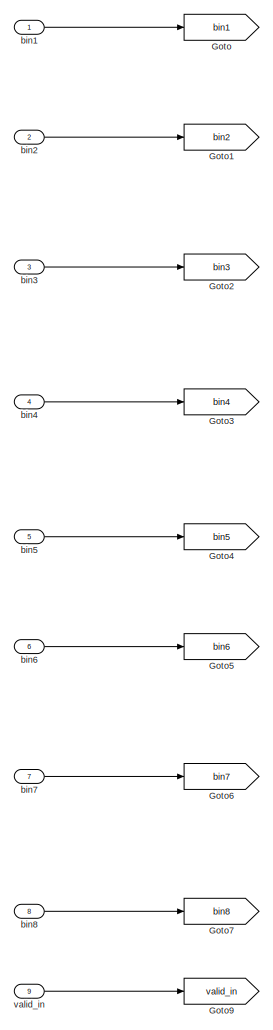
[diagram: findMax - part 1/4, top left region]
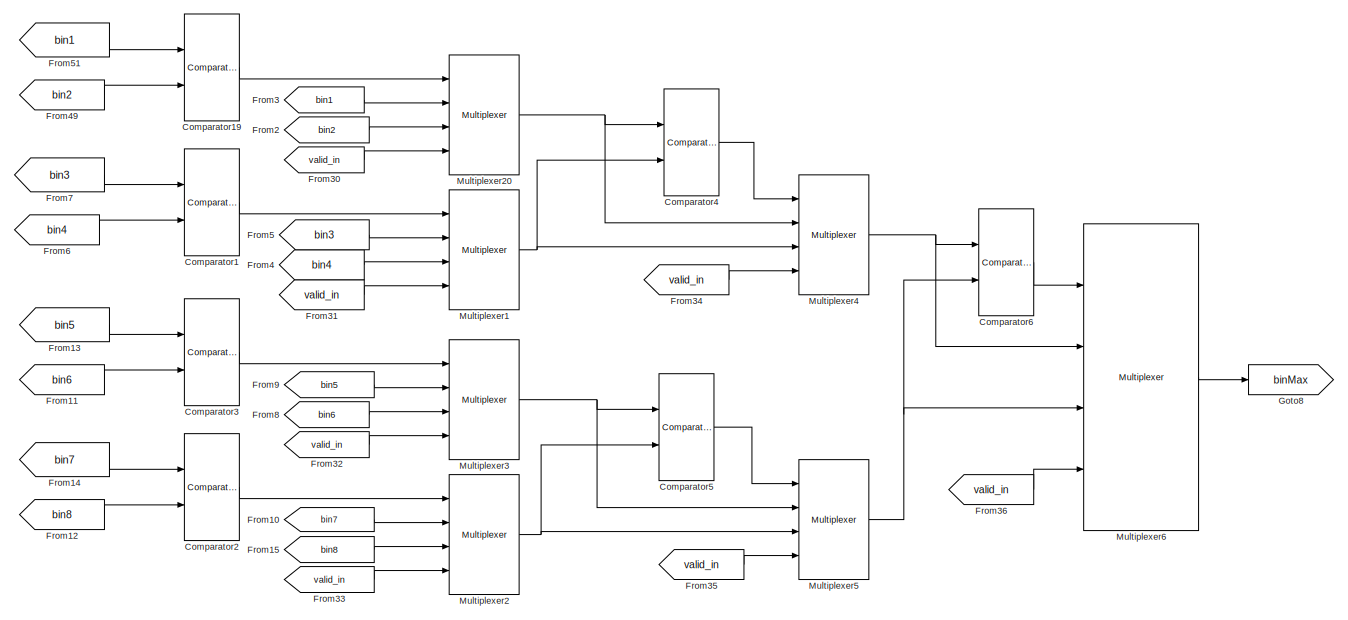
[diagram: findMax - part 2/4, top center region]
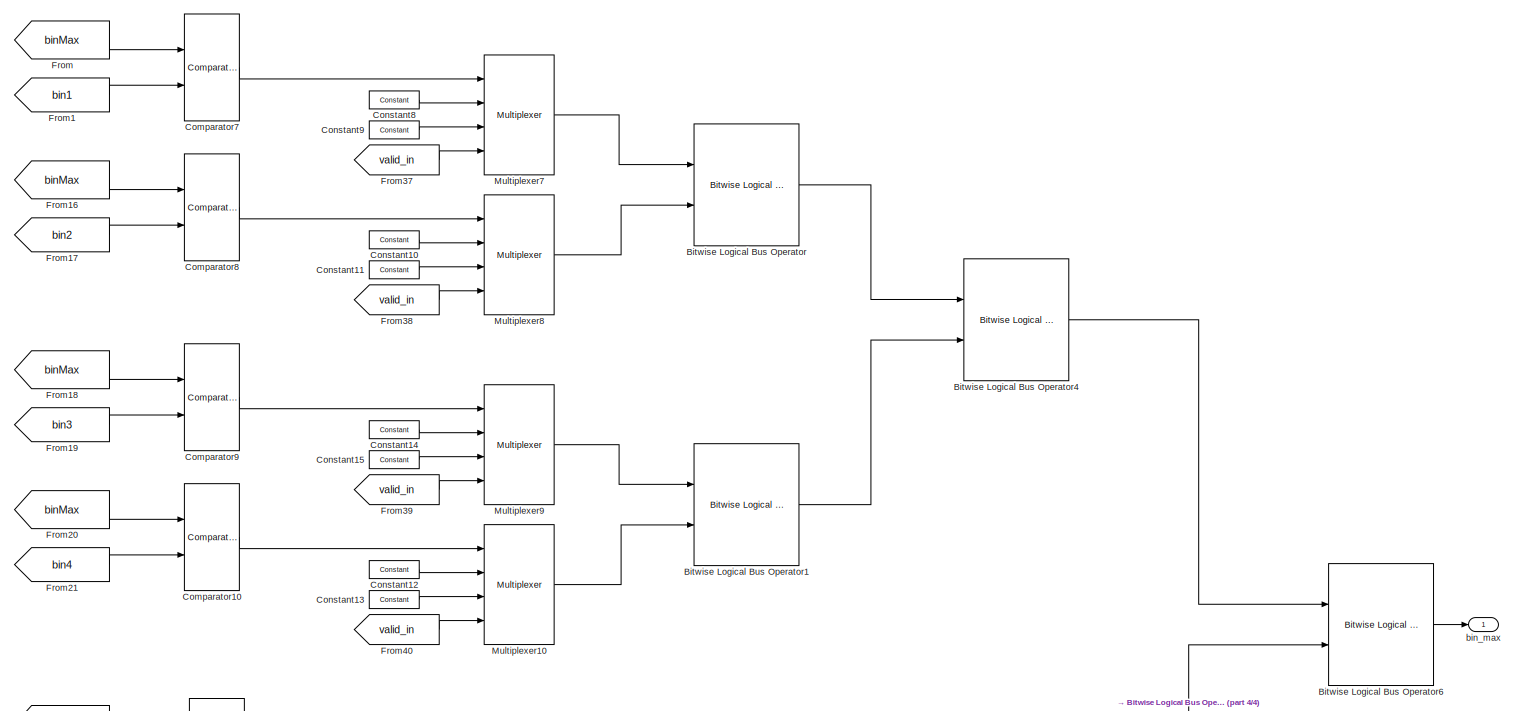
[diagram: findMax - part 3/4, full width, middle band]
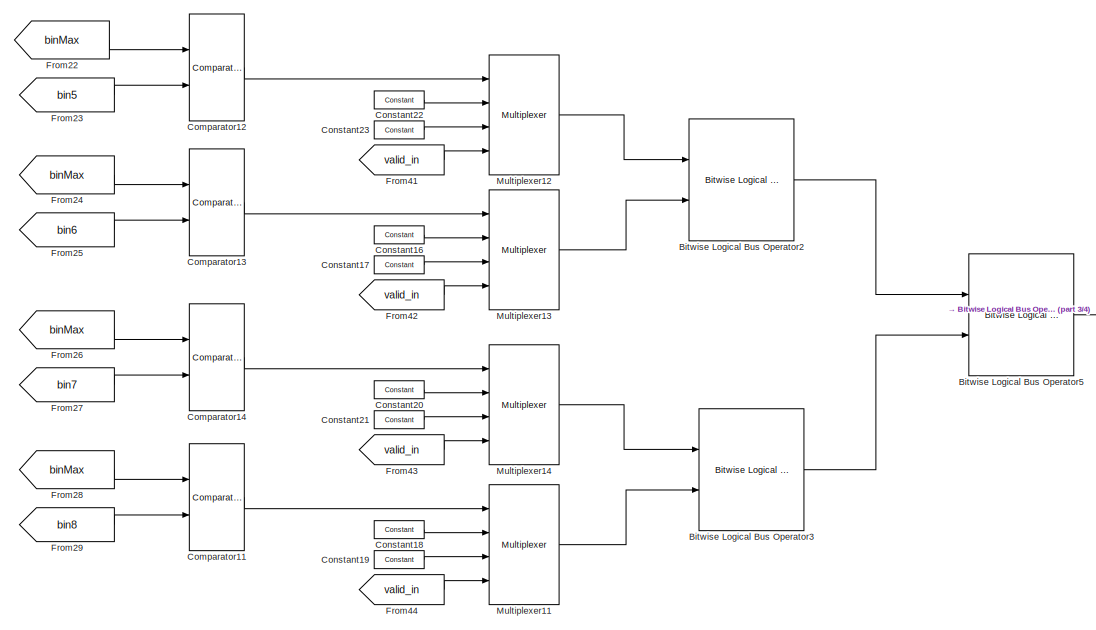
[diagram: findMax - part 4/4, bottom center region]
BLOCK [SubSystem] findMax
  Ports = [9, 1]
  RequestExecContextInheritance = off
BLOCK [Reference] findMax/Bitwise Logical Bus Operator  REF=allblocks_alteradspbuilder2/Bitwise Logical Bus Operator
  BusType = Unsigned Integer
  LogicalOperator = OR
  Ports = [2, 1]
  SourceBlock = allblocks_alteradspbuilder2/Bitwise Logical Bus Operator
  SourceType = Bitwise Logical Bus Operator AlteraBlockset
  bwl = 3
  bwr = 0
  pipeline_display = 0
BLOCK [Reference] findMax/Bitwise Logical Bus Operator1  REF=allblocks_alteradspbuilder2/Bitwise Logical Bus Operator
  BusType = Unsigned Integer
  LogicalOperator = OR
  Ports = [2, 1]
  SourceBlock = allblocks_alteradspbuilder2/Bitwise Logical Bus Operator
  SourceType = Bitwise Logical Bus Operator AlteraBlockset
  bwl = 3
  bwr = 0
  pipeline_display = 0
BLOCK [Reference] findMax/Bitwise Logical Bus Operator2  REF=allblocks_alteradspbuilder2/Bitwise Logical Bus Operator
  BusType = Unsigned Integer
  LogicalOperator = OR
  Ports = [2, 1]
  SourceBlock = allblocks_alteradspbuilder2/Bitwise Logical Bus Operator
  SourceType = Bitwise Logical Bus Operator AlteraBlockset
  bwl = 3
  bwr = 0
  pipeline_display = 0
BLOCK [Reference] findMax/Bitwise Logical Bus Operator3  REF=allblocks_alteradspbuilder2/Bitwise Logical Bus Operator
  BusType = Unsigned Integer
  LogicalOperator = OR
  Ports = [2, 1]
  SourceBlock = allblocks_alteradspbuilder2/Bitwise Logical Bus Operator
  SourceType = Bitwise Logical Bus Operator AlteraBlockset
  bwl = 3
  bwr = 0
  pipeline_display = 0
BLOCK [Reference] findMax/Bitwise Logical Bus Operator4  REF=allblocks_alteradspbuilder2/Bitwise Logical Bus Operator
  BusType = Unsigned Integer
  LogicalOperator = OR
  Ports = [2, 1]
  SourceBlock = allblocks_alteradspbuilder2/Bitwise Logical Bus Operator
  SourceType = Bitwise Logical Bus Operator AlteraBlockset
  bwl = 3
  bwr = 0
  pipeline_display = 0
BLOCK [Reference] findMax/Bitwise Logical Bus Operator5  REF=allblocks_alteradspbuilder2/Bitwise Logical Bus Operator
  BusType = Unsigned Integer
  LogicalOperator = OR
  Ports = [2, 1]
  SourceBlock = allblocks_alteradspbuilder2/Bitwise Logical Bus Operator
  SourceType = Bitwise Logical Bus Operator AlteraBlockset
  bwl = 3
  bwr = 0
  pipeline_display = 0
BLOCK [Reference] findMax/Bitwise Logical Bus Operator6  REF=allblocks_alteradspbuilder2/Bitwise Logical Bus Operator
  BusType = Unsigned Integer
  LogicalOperator = OR
  Ports = [2, 1]
  SourceBlock = allblocks_alteradspbuilder2/Bitwise Logical Bus Operator
  SourceType = Bitwise Logical Bus Operator AlteraBlockset
  bwl = 3
  bwr = 0
  pipeline_display = 0
BLOCK [Reference] findMax/Comparator1  REF=allblocks_alteradspbuilder2/Comparator
  Ports = [2, 1]
  SourceBlock = allblocks_alteradspbuilder2/Comparator
  SourceType = Comparator AlteraBlockset
  allowFloatingPointOverride = on
  direction = a < b
  logFile = <userpath>\Desktop\final_sift_fpga\tb_twoOctave\twoOctave_sift_descriptor1_findMax_Comparator1.fixedpointlog
  logOutputs = off
  pipeline_display = 0
BLOCK [Reference] findMax/Comparator10  REF=allblocks_alteradspbuilder2/Comparator
  Ports = [2, 1]
  SourceBlock = allblocks_alteradspbuilder2/Comparator
  SourceType = Comparator AlteraBlockset
  allowFloatingPointOverride = on
  direction = a == b
  logFile = <userpath>\Desktop\final_sift_fpga\tb_twoOctave\twoOctave_sift_descriptor1_findMax_Comparator10.fixedpointlog
  logOutputs = off
  pipeline_display = 0
BLOCK [Reference] findMax/Comparator11  REF=allblocks_alteradspbuilder2/Comparator
  Ports = [2, 1]
  SourceBlock = allblocks_alteradspbuilder2/Comparator
  SourceType = Comparator AlteraBlockset
  allowFloatingPointOverride = on
  direction = a == b
  logFile = <userpath>\Desktop\final_sift_fpga\tb_twoOctave\twoOctave_sift_descriptor1_findMax_Comparator11.fixedpointlog
  logOutputs = off
  pipeline_display = 0
BLOCK [Reference] findMax/Comparator12  REF=allblocks_alteradspbuilder2/Comparator
  Ports = [2, 1]
  SourceBlock = allblocks_alteradspbuilder2/Comparator
  SourceType = Comparator AlteraBlockset
  allowFloatingPointOverride = on
  direction = a == b
  logFile = <userpath>\Desktop\final_sift_fpga\tb_twoOctave\twoOctave_sift_descriptor1_findMax_Comparator12.fixedpointlog
  logOutputs = off
  pipeline_display = 0
BLOCK [Reference] findMax/Comparator13  REF=allblocks_alteradspbuilder2/Comparator
  Ports = [2, 1]
  SourceBlock = allblocks_alteradspbuilder2/Comparator
  SourceType = Comparator AlteraBlockset
  allowFloatingPointOverride = on
  direction = a == b
  logFile = <userpath>\Desktop\final_sift_fpga\tb_twoOctave\twoOctave_sift_descriptor1_findMax_Comparator13.fixedpointlog
  logOutputs = off
  pipeline_display = 0
BLOCK [Reference] findMax/Comparator14  REF=allblocks_alteradspbuilder2/Comparator
  Ports = [2, 1]
  SourceBlock = allblocks_alteradspbuilder2/Comparator
  SourceType = Comparator AlteraBlockset
  allowFloatingPointOverride = on
  direction = a == b
  logFile = <userpath>\Desktop\final_sift_fpga\tb_twoOctave\twoOctave_sift_descriptor1_findMax_Comparator14.fixedpointlog
  logOutputs = off
  pipeline_display = 0
BLOCK [Reference] findMax/Comparator19  REF=allblocks_alteradspbuilder2/Comparator
  Ports = [2, 1]
  SourceBlock = allblocks_alteradspbuilder2/Comparator
  SourceType = Comparator AlteraBlockset
  allowFloatingPointOverride = on
  direction = a < b
  logFile = <userpath>\Desktop\final_sift_fpga\tb_twoOctave\twoOctave_sift_descriptor1_findMax_Comparator19.fixedpointlog
  logOutputs = off
  pipeline_display = 0
BLOCK [Reference] findMax/Comparator2  REF=allblocks_alteradspbuilder2/Comparator
  Ports = [2, 1]
  SourceBlock = allblocks_alteradspbuilder2/Comparator
  SourceType = Comparator AlteraBlockset
  allowFloatingPointOverride = on
  direction = a < b
  logFile = <userpath>\Desktop\final_sift_fpga\tb_twoOctave\twoOctave_sift_descriptor1_findMax_Comparator2.fixedpointlog
  logOutputs = off
  pipeline_display = 0
BLOCK [Reference] findMax/Comparator3  REF=allblocks_alteradspbuilder2/Comparator
  Ports = [2, 1]
  SourceBlock = allblocks_alteradspbuilder2/Comparator
  SourceType = Comparator AlteraBlockset
  allowFloatingPointOverride = on
  direction = a < b
  logFile = <userpath>\Desktop\final_sift_fpga\tb_twoOctave\twoOctave_sift_descriptor1_findMax_Comparator3.fixedpointlog
  logOutputs = off
  pipeline_display = 0
BLOCK [Reference] findMax/Comparator4  REF=allblocks_alteradspbuilder2/Comparator
  Ports = [2, 1]
  SourceBlock = allblocks_alteradspbuilder2/Comparator
  SourceType = Comparator AlteraBlockset
  allowFloatingPointOverride = on
  direction = a < b
  logFile = <userpath>\Desktop\final_sift_fpga\tb_twoOctave\twoOctave_sift_descriptor1_findMax_Comparator4.fixedpointlog
  logOutputs = off
  pipeline_display = 0
BLOCK [Reference] findMax/Comparator5  REF=allblocks_alteradspbuilder2/Comparator
  Ports = [2, 1]
  SourceBlock = allblocks_alteradspbuilder2/Comparator
  SourceType = Comparator AlteraBlockset
  allowFloatingPointOverride = on
  direction = a < b
  logFile = <userpath>\Desktop\final_sift_fpga\tb_twoOctave\twoOctave_sift_descriptor1_findMax_Comparator5.fixedpointlog
  logOutputs = off
  pipeline_display = 0
BLOCK [Reference] findMax/Comparator6  REF=allblocks_alteradspbuilder2/Comparator
  Ports = [2, 1]
  SourceBlock = allblocks_alteradspbuilder2/Comparator
  SourceType = Comparator AlteraBlockset
  allowFloatingPointOverride = on
  direction = a < b
  logFile = <userpath>\Desktop\final_sift_fpga\tb_twoOctave\twoOctave_sift_descriptor1_findMax_Comparator6.fixedpointlog
  logOutputs = off
  pipeline_display = 0
BLOCK [Reference] findMax/Comparator7  REF=allblocks_alteradspbuilder2/Comparator
  Ports = [2, 1]
  SourceBlock = allblocks_alteradspbuilder2/Comparator
  SourceType = Comparator AlteraBlockset
  allowFloatingPointOverride = on
  direction = a == b
  logFile = <userpath>\Desktop\final_sift_fpga\tb_twoOctave\twoOctave_sift_descriptor1_findMax_Comparator7.fixedpointlog
  logOutputs = off
  pipeline_display = 0
BLOCK [Reference] findMax/Comparator8  REF=allblocks_alteradspbuilder2/Comparator
  Ports = [2, 1]
  SourceBlock = allblocks_alteradspbuilder2/Comparator
  SourceType = Comparator AlteraBlockset
  allowFloatingPointOverride = on
  direction = a == b
  logFile = <userpath>\Desktop\final_sift_fpga\tb_twoOctave\twoOctave_sift_descriptor1_findMax_Comparator8.fixedpointlog
  logOutputs = off
  pipeline_display = 0
BLOCK [Reference] findMax/Comparator9  REF=allblocks_alteradspbuilder2/Comparator
  Ports = [2, 1]
  SourceBlock = allblocks_alteradspbuilder2/Comparator
  SourceType = Comparator AlteraBlockset
  allowFloatingPointOverride = on
  direction = a == b
  logFile = <userpath>\Desktop\final_sift_fpga\tb_twoOctave\twoOctave_sift_descriptor1_findMax_Comparator9.fixedpointlog
  logOutputs = off
  pipeline_display = 0
BLOCK [Reference] findMax/Constant10  REF=allblocks_alteradspbuilder2/Constant
  BusType = Unsigned Integer
  Ports = [0, 1]
  SourceBlock = allblocks_alteradspbuilder2/Constant
  SourceType = Constant AlteraBlockset
  SpecifyClock = off
  allowFloatingPointOverride = on
  bwl = 3
  bwr = 0
  logFile = <userpath>\Desktop\final_sift_fpga\tb_twoOctave\twoOctave_sift_descriptor1_findMax_Constant10.fixedpointlog
  logOutputs = off
  mask_cst = 0
  roundMode = Truncate
  satMode = Wrap
BLOCK [Reference] findMax/Constant11  REF=allblocks_alteradspbuilder2/Constant
  BusType = Unsigned Integer
  Ports = [0, 1]
  SourceBlock = allblocks_alteradspbuilder2/Constant
  SourceType = Constant AlteraBlockset
  SpecifyClock = off
  allowFloatingPointOverride = on
  bwl = 3
  bwr = 0
  logFile = <userpath>\Desktop\final_sift_fpga\tb_twoOctave\twoOctave_sift_descriptor1_findMax_Constant11.fixedpointlog
  logOutputs = off
  mask_cst = 1
  roundMode = Truncate
  satMode = Wrap
BLOCK [Reference] findMax/Constant12  REF=allblocks_alteradspbuilder2/Constant
  BusType = Unsigned Integer
  Ports = [0, 1]
  SourceBlock = allblocks_alteradspbuilder2/Constant
  SourceType = Constant AlteraBlockset
  SpecifyClock = off
  allowFloatingPointOverride = on
  bwl = 3
  bwr = 0
  logFile = <userpath>\Desktop\final_sift_fpga\tb_twoOctave\twoOctave_sift_descriptor1_findMax_Constant12.fixedpointlog
  logOutputs = off
  mask_cst = 0
  roundMode = Truncate
  satMode = Wrap
BLOCK [Reference] findMax/Constant13  REF=allblocks_alteradspbuilder2/Constant
  BusType = Unsigned Integer
  Ports = [0, 1]
  SourceBlock = allblocks_alteradspbuilder2/Constant
  SourceType = Constant AlteraBlockset
  SpecifyClock = off
  allowFloatingPointOverride = on
  bwl = 3
  bwr = 0
  logFile = <userpath>\Desktop\final_sift_fpga\tb_twoOctave\twoOctave_sift_descriptor1_findMax_Constant13.fixedpointlog
  logOutputs = off
  mask_cst = 3
  roundMode = Truncate
  satMode = Wrap
BLOCK [Reference] findMax/Constant14  REF=allblocks_alteradspbuilder2/Constant
  BusType = Unsigned Integer
  Ports = [0, 1]
  SourceBlock = allblocks_alteradspbuilder2/Constant
  SourceType = Constant AlteraBlockset
  SpecifyClock = off
  allowFloatingPointOverride = on
  bwl = 3
  bwr = 0
  logFile = <userpath>\Desktop\final_sift_fpga\tb_twoOctave\twoOctave_sift_descriptor1_findMax_Constant14.fixedpointlog
  logOutputs = off
  mask_cst = 0
  roundMode = Truncate
  satMode = Wrap
BLOCK [Reference] findMax/Constant15  REF=allblocks_alteradspbuilder2/Constant
  BusType = Unsigned Integer
  Ports = [0, 1]
  SourceBlock = allblocks_alteradspbuilder2/Constant
  SourceType = Constant AlteraBlockset
  SpecifyClock = off
  allowFloatingPointOverride = on
  bwl = 3
  bwr = 0
  logFile = <userpath>\Desktop\final_sift_fpga\tb_twoOctave\twoOctave_sift_descriptor1_findMax_Constant15.fixedpointlog
  logOutputs = off
  mask_cst = 2
  roundMode = Truncate
  satMode = Wrap
BLOCK [Reference] findMax/Constant16  REF=allblocks_alteradspbuilder2/Constant
  BusType = Unsigned Integer
  Ports = [0, 1]
  SourceBlock = allblocks_alteradspbuilder2/Constant
  SourceType = Constant AlteraBlockset
  SpecifyClock = off
  allowFloatingPointOverride = on
  bwl = 3
  bwr = 0
  logFile = <userpath>\Desktop\final_sift_fpga\tb_twoOctave\twoOctave_sift_descriptor1_findMax_Constant16.fixedpointlog
  logOutputs = off
  mask_cst = 0
  roundMode = Truncate
  satMode = Wrap
BLOCK [Reference] findMax/Constant17  REF=allblocks_alteradspbuilder2/Constant
  BusType = Unsigned Integer
  Ports = [0, 1]
  SourceBlock = allblocks_alteradspbuilder2/Constant
  SourceType = Constant AlteraBlockset
  SpecifyClock = off
  allowFloatingPointOverride = on
  bwl = 3
  bwr = 0
  logFile = <userpath>\Desktop\final_sift_fpga\tb_twoOctave\twoOctave_sift_descriptor1_findMax_Constant17.fixedpointlog
  logOutputs = off
  mask_cst = 5
  roundMode = Truncate
  satMode = Wrap
BLOCK [Reference] findMax/Constant18  REF=allblocks_alteradspbuilder2/Constant
  BusType = Unsigned Integer
  Ports = [0, 1]
  SourceBlock = allblocks_alteradspbuilder2/Constant
  SourceType = Constant AlteraBlockset
  SpecifyClock = off
  allowFloatingPointOverride = on
  bwl = 3
  bwr = 0
  logFile = <userpath>\Desktop\final_sift_fpga\tb_twoOctave\twoOctave_sift_descriptor1_findMax_Constant18.fixedpointlog
  logOutputs = off
  mask_cst = 0
  roundMode = Truncate
  satMode = Wrap
BLOCK [Reference] findMax/Constant19  REF=allblocks_alteradspbuilder2/Constant
  BusType = Unsigned Integer
  Ports = [0, 1]
  SourceBlock = allblocks_alteradspbuilder2/Constant
  SourceType = Constant AlteraBlockset
  SpecifyClock = off
  allowFloatingPointOverride = on
  bwl = 3
  bwr = 0
  logFile = <userpath>\Desktop\final_sift_fpga\tb_twoOctave\twoOctave_sift_descriptor1_findMax_Constant19.fixedpointlog
  logOutputs = off
  mask_cst = 7
  roundMode = Truncate
  satMode = Wrap
BLOCK [Reference] findMax/Constant20  REF=allblocks_alteradspbuilder2/Constant
  BusType = Unsigned Integer
  Ports = [0, 1]
  SourceBlock = allblocks_alteradspbuilder2/Constant
  SourceType = Constant AlteraBlockset
  SpecifyClock = off
  allowFloatingPointOverride = on
  bwl = 3
  bwr = 0
  logFile = <userpath>\Desktop\final_sift_fpga\tb_twoOctave\twoOctave_sift_descriptor1_findMax_Constant20.fixedpointlog
  logOutputs = off
  mask_cst = 0
  roundMode = Truncate
  satMode = Wrap
BLOCK [Reference] findMax/Constant21  REF=allblocks_alteradspbuilder2/Constant
  BusType = Unsigned Integer
  Ports = [0, 1]
  SourceBlock = allblocks_alteradspbuilder2/Constant
  SourceType = Constant AlteraBlockset
  SpecifyClock = off
  allowFloatingPointOverride = on
  bwl = 3
  bwr = 0
  logFile = <userpath>\Desktop\final_sift_fpga\tb_twoOctave\twoOctave_sift_descriptor1_findMax_Constant21.fixedpointlog
  logOutputs = off
  mask_cst = 6
  roundMode = Truncate
  satMode = Wrap
BLOCK [Reference] findMax/Constant22  REF=allblocks_alteradspbuilder2/Constant
  BusType = Unsigned Integer
  Ports = [0, 1]
  SourceBlock = allblocks_alteradspbuilder2/Constant
  SourceType = Constant AlteraBlockset
  SpecifyClock = off
  allowFloatingPointOverride = on
  bwl = 3
  bwr = 0
  logFile = <userpath>\Desktop\final_sift_fpga\tb_twoOctave\twoOctave_sift_descriptor1_findMax_Constant22.fixedpointlog
  logOutputs = off
  mask_cst = 0
  roundMode = Truncate
  satMode = Wrap
BLOCK [Reference] findMax/Constant23  REF=allblocks_alteradspbuilder2/Constant
  BusType = Unsigned Integer
  Ports = [0, 1]
  SourceBlock = allblocks_alteradspbuilder2/Constant
  SourceType = Constant AlteraBlockset
  SpecifyClock = off
  allowFloatingPointOverride = on
  bwl = 3
  bwr = 0
  logFile = <userpath>\Desktop\final_sift_fpga\tb_twoOctave\twoOctave_sift_descriptor1_findMax_Constant23.fixedpointlog
  logOutputs = off
  mask_cst = 4
  roundMode = Truncate
  satMode = Wrap
BLOCK [Reference] findMax/Constant8  REF=allblocks_alteradspbuilder2/Constant
  BusType = Unsigned Integer
  Ports = [0, 1]
  SourceBlock = allblocks_alteradspbuilder2/Constant
  SourceType = Constant AlteraBlockset
  SpecifyClock = off
  allowFloatingPointOverride = on
  bwl = 3
  bwr = 0
  logFile = <userpath>\Desktop\final_sift_fpga\tb_twoOctave\twoOctave_sift_descriptor1_findMax_Constant8.fixedpointlog
  logOutputs = off
  mask_cst = 0
  roundMode = Truncate
  satMode = Wrap
BLOCK [Reference] findMax/Constant9  REF=allblocks_alteradspbuilder2/Constant
  BusType = Unsigned Integer
  Ports = [0, 1]
  SourceBlock = allblocks_alteradspbuilder2/Constant
  SourceType = Constant AlteraBlockset
  SpecifyClock = off
  allowFloatingPointOverride = on
  bwl = 3
  bwr = 0
  logFile = <userpath>\Desktop\final_sift_fpga\tb_twoOctave\twoOctave_sift_descriptor1_findMax_Constant9.fixedpointlog
  logOutputs = off
  mask_cst = 0
  roundMode = Truncate
  satMode = Wrap
BLOCK [From] findMax/From
  GotoTag = binMax
BLOCK [From] findMax/From1
  GotoTag = bin1
BLOCK [From] findMax/From10
  GotoTag = bin7
BLOCK [From] findMax/From11
  GotoTag = bin6
BLOCK [From] findMax/From12
  GotoTag = bin8
BLOCK [From] findMax/From13
  GotoTag = bin5
BLOCK [From] findMax/From14
  GotoTag = bin7
BLOCK [From] findMax/From15
  GotoTag = bin8
BLOCK [From] findMax/From16
  GotoTag = binMax
BLOCK [From] findMax/From17
  GotoTag = bin2
BLOCK [From] findMax/From18
  GotoTag = binMax
BLOCK [From] findMax/From19
  GotoTag = bin3
BLOCK [From] findMax/From2
  GotoTag = bin2
BLOCK [From] findMax/From20
  GotoTag = binMax
BLOCK [From] findMax/From21
  GotoTag = bin4
BLOCK [From] findMax/From22
  GotoTag = binMax
BLOCK [From] findMax/From23
  GotoTag = bin5
BLOCK [From] findMax/From24
  GotoTag = binMax
BLOCK [From] findMax/From25
  GotoTag = bin6
BLOCK [From] findMax/From26
  GotoTag = binMax
BLOCK [From] findMax/From27
  GotoTag = bin7
BLOCK [From] findMax/From28
  GotoTag = binMax
BLOCK [From] findMax/From29
  GotoTag = bin8
BLOCK [From] findMax/From3
  GotoTag = bin1
BLOCK [From] findMax/From30
  GotoTag = valid_in
BLOCK [From] findMax/From31
  GotoTag = valid_in
BLOCK [From] findMax/From32
  GotoTag = valid_in
BLOCK [From] findMax/From33
  GotoTag = valid_in
BLOCK [From] findMax/From34
  GotoTag = valid_in
BLOCK [From] findMax/From35
  GotoTag = valid_in
BLOCK [From] findMax/From36
  GotoTag = valid_in
BLOCK [From] findMax/From37
  GotoTag = valid_in
BLOCK [From] findMax/From38
  GotoTag = valid_in
BLOCK [From] findMax/From39
  GotoTag = valid_in
BLOCK [From] findMax/From4
  GotoTag = bin4
BLOCK [From] findMax/From40
  GotoTag = valid_in
BLOCK [From] findMax/From41
  GotoTag = valid_in
BLOCK [From] findMax/From42
  GotoTag = valid_in
BLOCK [From] findMax/From43
  GotoTag = valid_in
BLOCK [From] findMax/From44
  GotoTag = valid_in
BLOCK [From] findMax/From49
  GotoTag = bin2
BLOCK [From] findMax/From5
  GotoTag = bin3
BLOCK [From] findMax/From51
  GotoTag = bin1
BLOCK [From] findMax/From6
  GotoTag = bin4
BLOCK [From] findMax/From7
  GotoTag = bin3
BLOCK [From] findMax/From8
  GotoTag = bin6
BLOCK [From] findMax/From9
  GotoTag = bin5
BLOCK [Goto] findMax/Goto
  GotoTag = bin1
BLOCK [Goto] findMax/Goto1
  GotoTag = bin2
BLOCK [Goto] findMax/Goto2
  GotoTag = bin3
BLOCK [Goto] findMax/Goto3
  GotoTag = bin4
BLOCK [Goto] findMax/Goto4
  GotoTag = bin5
BLOCK [Goto] findMax/Goto5
  GotoTag = bin6
BLOCK [Goto] findMax/Goto6
  GotoTag = bin7
BLOCK [Goto] findMax/Goto7
  GotoTag = bin8
BLOCK [Goto] findMax/Goto8
  GotoTag = binMax
BLOCK [Goto] findMax/Goto9
  GotoTag = valid_in
BLOCK [Reference] findMax/Multiplexer1  REF=allblocks_alteradspbuilder2/Multiplexer
  Ports = [4, 1]
  SourceBlock = allblocks_alteradspbuilder2/Multiplexer
  SourceType = Multiplexer AlteraBlockset
  allowFloatingPointOverride = on
  logFile = <userpath>\Desktop\final_sift_fpga\tb_twoOctave\twoOctave_sift_descriptor1_findMax_Multiplexer1.fixedpointlog
  logOutputs = off
  numInputs = 2
  oneHot = off
  pipeline = 1
  pipeline_display = 1
  use_aclr = off
  use_ena = on
BLOCK [Reference] findMax/Multiplexer10  REF=allblocks_alteradspbuilder2/Multiplexer
  Ports = [4, 1]
  SourceBlock = allblocks_alteradspbuilder2/Multiplexer
  SourceType = Multiplexer AlteraBlockset
  allowFloatingPointOverride = on
  logFile = <userpath>\Desktop\final_sift_fpga\tb_twoOctave\twoOctave_sift_descriptor1_findMax_Multiplexer10.fixedpointlog
  logOutputs = off
  numInputs = 2
  oneHot = off
  pipeline = 1
  pipeline_display = 1
  use_aclr = off
  use_ena = on
BLOCK [Reference] findMax/Multiplexer11  REF=allblocks_alteradspbuilder2/Multiplexer
  Ports = [4, 1]
  SourceBlock = allblocks_alteradspbuilder2/Multiplexer
  SourceType = Multiplexer AlteraBlockset
  allowFloatingPointOverride = on
  logFile = <userpath>\Desktop\final_sift_fpga\tb_twoOctave\twoOctave_sift_descriptor1_findMax_Multiplexer11.fixedpointlog
  logOutputs = off
  numInputs = 2
  oneHot = off
  pipeline = 1
  pipeline_display = 1
  use_aclr = off
  use_ena = on
BLOCK [Reference] findMax/Multiplexer12  REF=allblocks_alteradspbuilder2/Multiplexer
  Ports = [4, 1]
  SourceBlock = allblocks_alteradspbuilder2/Multiplexer
  SourceType = Multiplexer AlteraBlockset
  allowFloatingPointOverride = on
  logFile = <userpath>\Desktop\final_sift_fpga\tb_twoOctave\twoOctave_sift_descriptor1_findMax_Multiplexer12.fixedpointlog
  logOutputs = off
  numInputs = 2
  oneHot = off
  pipeline = 1
  pipeline_display = 1
  use_aclr = off
  use_ena = on
BLOCK [Reference] findMax/Multiplexer13  REF=allblocks_alteradspbuilder2/Multiplexer
  Ports = [4, 1]
  SourceBlock = allblocks_alteradspbuilder2/Multiplexer
  SourceType = Multiplexer AlteraBlockset
  allowFloatingPointOverride = on
  logFile = <userpath>\Desktop\final_sift_fpga\tb_twoOctave\twoOctave_sift_descriptor1_findMax_Multiplexer13.fixedpointlog
  logOutputs = off
  numInputs = 2
  oneHot = off
  pipeline = 1
  pipeline_display = 1
  use_aclr = off
  use_ena = on
BLOCK [Reference] findMax/Multiplexer14  REF=allblocks_alteradspbuilder2/Multiplexer
  Ports = [4, 1]
  SourceBlock = allblocks_alteradspbuilder2/Multiplexer
  SourceType = Multiplexer AlteraBlockset
  allowFloatingPointOverride = on
  logFile = <userpath>\Desktop\final_sift_fpga\tb_twoOctave\twoOctave_sift_descriptor1_findMax_Multiplexer14.fixedpointlog
  logOutputs = off
  numInputs = 2
  oneHot = off
  pipeline = 1
  pipeline_display = 1
  use_aclr = off
  use_ena = on
BLOCK [Reference] findMax/Multiplexer2  REF=allblocks_alteradspbuilder2/Multiplexer
  Ports = [4, 1]
  SourceBlock = allblocks_alteradspbuilder2/Multiplexer
  SourceType = Multiplexer AlteraBlockset
  allowFloatingPointOverride = on
  logFile = <userpath>\Desktop\final_sift_fpga\tb_twoOctave\twoOctave_sift_descriptor1_findMax_Multiplexer2.fixedpointlog
  logOutputs = off
  numInputs = 2
  oneHot = off
  pipeline = 1
  pipeline_display = 1
  use_aclr = off
  use_ena = on
BLOCK [Reference] findMax/Multiplexer20  REF=allblocks_alteradspbuilder2/Multiplexer
  Ports = [4, 1]
  SourceBlock = allblocks_alteradspbuilder2/Multiplexer
  SourceType = Multiplexer AlteraBlockset
  allowFloatingPointOverride = on
  logFile = <userpath>\Desktop\final_sift_fpga\tb_twoOctave\twoOctave_sift_descriptor1_findMax_Multiplexer20.fixedpointlog
  logOutputs = off
  numInputs = 2
  oneHot = off
  pipeline = 1
  pipeline_display = 1
  use_aclr = off
  use_ena = on
BLOCK [Reference] findMax/Multiplexer3  REF=allblocks_alteradspbuilder2/Multiplexer
  Ports = [4, 1]
  SourceBlock = allblocks_alteradspbuilder2/Multiplexer
  SourceType = Multiplexer AlteraBlockset
  allowFloatingPointOverride = on
  logFile = <userpath>\Desktop\final_sift_fpga\tb_twoOctave\twoOctave_sift_descriptor1_findMax_Multiplexer3.fixedpointlog
  logOutputs = off
  numInputs = 2
  oneHot = off
  pipeline = 1
  pipeline_display = 1
  use_aclr = off
  use_ena = on
BLOCK [Reference] findMax/Multiplexer4  REF=allblocks_alteradspbuilder2/Multiplexer
  Ports = [4, 1]
  SourceBlock = allblocks_alteradspbuilder2/Multiplexer
  SourceType = Multiplexer AlteraBlockset
  allowFloatingPointOverride = on
  logFile = <userpath>\Desktop\final_sift_fpga\tb_twoOctave\twoOctave_sift_descriptor1_findMax_Multiplexer4.fixedpointlog
  logOutputs = off
  numInputs = 2
  oneHot = off
  pipeline = 1
  pipeline_display = 1
  use_aclr = off
  use_ena = on
BLOCK [Reference] findMax/Multiplexer5  REF=allblocks_alteradspbuilder2/Multiplexer
  Ports = [4, 1]
  SourceBlock = allblocks_alteradspbuilder2/Multiplexer
  SourceType = Multiplexer AlteraBlockset
  allowFloatingPointOverride = on
  logFile = <userpath>\Desktop\final_sift_fpga\tb_twoOctave\twoOctave_sift_descriptor1_findMax_Multiplexer5.fixedpointlog
  logOutputs = off
  numInputs = 2
  oneHot = off
  pipeline = 1
  pipeline_display = 1
  use_aclr = off
  use_ena = on
BLOCK [Reference] findMax/Multiplexer6  REF=allblocks_alteradspbuilder2/Multiplexer
  Ports = [4, 1]
  SourceBlock = allblocks_alteradspbuilder2/Multiplexer
  SourceType = Multiplexer AlteraBlockset
  allowFloatingPointOverride = on
  logFile = <userpath>\Desktop\final_sift_fpga\tb_twoOctave\twoOctave_sift_descriptor1_findMax_Multiplexer6.fixedpointlog
  logOutputs = off
  numInputs = 2
  oneHot = off
  pipeline = 1
  pipeline_display = 1
  use_aclr = off
  use_ena = on
BLOCK [Reference] findMax/Multiplexer7  REF=allblocks_alteradspbuilder2/Multiplexer
  Ports = [4, 1]
  SourceBlock = allblocks_alteradspbuilder2/Multiplexer
  SourceType = Multiplexer AlteraBlockset
  allowFloatingPointOverride = on
  logFile = <userpath>\Desktop\final_sift_fpga\tb_twoOctave\twoOctave_sift_descriptor1_findMax_Multiplexer7.fixedpointlog
  logOutputs = off
  numInputs = 2
  oneHot = off
  pipeline = 1
  pipeline_display = 1
  use_aclr = off
  use_ena = on
BLOCK [Reference] findMax/Multiplexer8  REF=allblocks_alteradspbuilder2/Multiplexer
  Ports = [4, 1]
  SourceBlock = allblocks_alteradspbuilder2/Multiplexer
  SourceType = Multiplexer AlteraBlockset
  allowFloatingPointOverride = on
  logFile = <userpath>\Desktop\final_sift_fpga\tb_twoOctave\twoOctave_sift_descriptor1_findMax_Multiplexer8.fixedpointlog
  logOutputs = off
  numInputs = 2
  oneHot = off
  pipeline = 1
  pipeline_display = 1
  use_aclr = off
  use_ena = on
BLOCK [Reference] findMax/Multiplexer9  REF=allblocks_alteradspbuilder2/Multiplexer
  Ports = [4, 1]
  SourceBlock = allblocks_alteradspbuilder2/Multiplexer
  SourceType = Multiplexer AlteraBlockset
  allowFloatingPointOverride = on
  logFile = <userpath>\Desktop\final_sift_fpga\tb_twoOctave\twoOctave_sift_descriptor1_findMax_Multiplexer9.fixedpointlog
  logOutputs = off
  numInputs = 2
  oneHot = off
  pipeline = 1
  pipeline_display = 1
  use_aclr = off
  use_ena = on
BLOCK [Inport] findMax/bin1
  IconDisplay = Port number
BLOCK [Inport] findMax/bin2
  IconDisplay = Port number
  Port = 2
BLOCK [Inport] findMax/bin3
  IconDisplay = Port number
  Port = 3
BLOCK [Inport] findMax/bin4
  IconDisplay = Port number
  Port = 4
BLOCK [Inport] findMax/bin5
  IconDisplay = Port number
  Port = 5
BLOCK [Inport] findMax/bin6
  IconDisplay = Port number
  Port = 6
BLOCK [Inport] findMax/bin7
  IconDisplay = Port number
  Port = 7
BLOCK [Inport] findMax/bin8
  IconDisplay = Port number
  Port = 8
BLOCK [Outport] findMax/bin_max
  IconDisplay = Port number
BLOCK [Inport] findMax/valid_in
  IconDisplay = Port number
  Port = 9
LINE BusSplitter/Bus Conversion1:1 -> BusSplitter/bin7:1
LINE BusSplitter/Bus Conversion2:1 -> BusSplitter/bin6:1
LINE BusSplitter/Bus Conversion3:1 -> BusSplitter/bin5:1
LINE BusSplitter/Bus Conversion4:1 -> BusSplitter/bin4:1
LINE BusSplitter/Bus Conversion5:1 -> BusSplitter/bin3:1
LINE BusSplitter/Bus Conversion6:1 -> BusSplitter/bin2:1
LINE BusSplitter/Bus Conversion7:1 -> BusSplitter/bin1:1
LINE BusSplitter/Bus Conversion:1 -> BusSplitter/bin8:1
NET BusSplitter/data_in:1 -> BusSplitter/Bus Conversion1:1, BusSplitter/Bus Conversion2:1, BusSplitter/Bus Conversion3:1, BusSplitter/Bus Conversion4:1, BusSplitter/Bus Conversion5:1, BusSplitter/Bus Conversion6:1, BusSplitter/Bus Conversion7:1, BusSplitter/Bus Conversion:1
LINE BusSplitter:1 -> findMax:1
LINE BusSplitter:2 -> findMax:2
LINE BusSplitter:3 -> findMax:3
LINE BusSplitter:4 -> findMax:4
LINE BusSplitter:5 -> findMax:5
LINE BusSplitter:6 -> findMax:6
LINE BusSplitter:7 -> findMax:7
LINE BusSplitter:8 -> findMax:8
LINE Bus_Concatenation1/Bus Concatenation1:1 -> Bus_Concatenation1/Bus Concatenation8:1
LINE Bus_Concatenation1/Bus Concatenation2:1 -> Bus_Concatenation1/Bus Concatenation7:2
LINE Bus_Concatenation1/Bus Concatenation3:1 -> Bus_Concatenation1/Bus Concatenation7:1
LINE Bus_Concatenation1/Bus Concatenation7:1 -> Bus_Concatenation1/Bus Concatenation9:1
LINE Bus_Concatenation1/Bus Concatenation8:1 -> Bus_Concatenation1/Bus Concatenation9:2
LINE Bus_Concatenation1/Bus Concatenation9:1 -> Bus_Concatenation1/hist_bin:1
LINE Bus_Concatenation1/Bus Concatenation:1 -> Bus_Concatenation1/Bus Concatenation8:2
LINE Bus_Concatenation1/From1:1 -> Bus_Concatenation1/Bus Concatenation:1
LINE Bus_Concatenation1/From2:1 -> Bus_Concatenation1/Bus Concatenation1:2
LINE Bus_Concatenation1/From3:1 -> Bus_Concatenation1/Bus Concatenation1:1
LINE Bus_Concatenation1/From4:1 -> Bus_Concatenation1/Bus Concatenation2:2
LINE Bus_Concatenation1/From5:1 -> Bus_Concatenation1/Bus Concatenation2:1
LINE Bus_Concatenation1/From6:1 -> Bus_Concatenation1/Bus Concatenation3:2
LINE Bus_Concatenation1/From7:1 -> Bus_Concatenation1/Bus Concatenation3:1
LINE Bus_Concatenation1/From:1 -> Bus_Concatenation1/Bus Concatenation:2
LINE Bus_Concatenation1/biin3_in:1 -> Bus_Concatenation1/Goto2:1
LINE Bus_Concatenation1/bin1_in:1 -> Bus_Concatenation1/Goto:1
LINE Bus_Concatenation1/bin2_in:1 -> Bus_Concatenation1/Goto1:1
LINE Bus_Concatenation1/bin4_in:1 -> Bus_Concatenation1/Goto3:1
LINE Bus_Concatenation1/bin5_in:1 -> Bus_Concatenation1/Goto4:1
LINE Bus_Concatenation1/bin6_in:1 -> Bus_Concatenation1/Goto5:1
LINE Bus_Concatenation1/bin8_in:1 -> Bus_Concatenation1/Goto7:1
LINE Bus_Concatenation1/bin_in:1 -> Bus_Concatenation1/Goto6:1
LINE Bus_Concatenation1:1 -> descriptor:5
LINE Constant10:1 -> descriptor:2
LINE Constant11:1 -> descriptor:3
LINE Constant12:1 -> descriptor:4
LINE Constant13:1 -> descriptor:6
LINE Constant14:1 -> descriptor:7
LINE Constant15:1 -> descriptor:8
LINE Constant16:1 -> descriptor:9
LINE Constant17:1 -> descriptor:10
LINE Constant1:1 -> Bus_Concatenation1:2
LINE Constant2:1 -> Bus_Concatenation1:3
LINE Constant3:1 -> Bus_Concatenation1:4
LINE Constant4:1 -> Bus_Concatenation1:5
LINE Constant5:1 -> Bus_Concatenation1:6
LINE Constant6:1 -> Bus_Concatenation1:7
LINE Constant7:1 -> Bus_Concatenation1:8
LINE Constant9:1 -> descriptor:1
LINE Constant:1 -> Bus_Concatenation1:1
LINE From1:1 -> findMax:9
LINE From:1 -> BusSplitter:1
LINE descriptor/BusSplitter/Bus Conversion1:1 -> descriptor/BusSplitter/bin7:1
LINE descriptor/BusSplitter/Bus Conversion2:1 -> descriptor/BusSplitter/bin6:1
LINE descriptor/BusSplitter/Bus Conversion3:1 -> descriptor/BusSplitter/bin5:1
LINE descriptor/BusSplitter/Bus Conversion4:1 -> descriptor/BusSplitter/bin4:1
LINE descriptor/BusSplitter/Bus Conversion5:1 -> descriptor/BusSplitter/bin3:1
LINE descriptor/BusSplitter/Bus Conversion6:1 -> descriptor/BusSplitter/bin2:1
LINE descriptor/BusSplitter/Bus Conversion7:1 -> descriptor/BusSplitter/bin1:1
LINE descriptor/BusSplitter/Bus Conversion:1 -> descriptor/BusSplitter/bin8:1
NET descriptor/BusSplitter/data_in:1 -> descriptor/BusSplitter/Bus Conversion1:1, descriptor/BusSplitter/Bus Conversion2:1, descriptor/BusSplitter/Bus Conversion3:1, descriptor/BusSplitter/Bus Conversion4:1, descriptor/BusSplitter/Bus Conversion5:1, descriptor/BusSplitter/Bus Conversion6:1, descriptor/BusSplitter/Bus Conversion7:1, descriptor/BusSplitter/Bus Conversion:1
LINE descriptor/BusSplitter:1 -> descriptor/findMax:1
LINE descriptor/BusSplitter:2 -> descriptor/findMax:2
LINE descriptor/BusSplitter:3 -> descriptor/findMax:3
LINE descriptor/BusSplitter:4 -> descriptor/findMax:4
LINE descriptor/BusSplitter:5 -> descriptor/findMax:5
LINE descriptor/BusSplitter:6 -> descriptor/findMax:6
LINE descriptor/BusSplitter:7 -> descriptor/findMax:7
LINE descriptor/BusSplitter:8 -> descriptor/findMax:8
LINE descriptor/From100:1 -> descriptor/Multiplexer5:5
LINE descriptor/From101:1 -> descriptor/Multiplexer4:5
LINE descriptor/From102:1 -> descriptor/Multiplexer2:5
LINE descriptor/From103:1 -> descriptor/Multiplexer1:5
LINE descriptor/From104:1 -> descriptor/Multiplexer9:5
LINE descriptor/From105:1 -> descriptor/Multiplexer8:5
LINE descriptor/From106:1 -> descriptor/Multiplexer7:5
LINE descriptor/From108:1 -> descriptor/Multiplexer4:6
LINE descriptor/From109:1 -> descriptor/Multiplexer2:6
LINE descriptor/From10:1 -> descriptor/Multiplexer6:1
LINE descriptor/From110:1 -> descriptor/Multiplexer1:6
LINE descriptor/From111:1 -> descriptor/Multiplexer9:6
LINE descriptor/From112:1 -> descriptor/Multiplexer8:6
LINE descriptor/From113:1 -> descriptor/Multiplexer7:6
LINE descriptor/From114:1 -> descriptor/Multiplexer6:6
LINE descriptor/From115:1 -> descriptor/Multiplexer5:6
LINE descriptor/From117:1 -> descriptor/Multiplexer2:7
LINE descriptor/From118:1 -> descriptor/Multiplexer1:7
LINE descriptor/From119:1 -> descriptor/Multiplexer9:7
LINE descriptor/From11:1 -> descriptor/Multiplexer1:1
LINE descriptor/From120:1 -> descriptor/Multiplexer8:7
LINE descriptor/From121:1 -> descriptor/Multiplexer7:7
LINE descriptor/From122:1 -> descriptor/Multiplexer6:7
LINE descriptor/From123:1 -> descriptor/Multiplexer5:7
LINE descriptor/From124:1 -> descriptor/Multiplexer4:7
LINE descriptor/From126:1 -> descriptor/Multiplexer1:8
LINE descriptor/From127:1 -> descriptor/Multiplexer9:8
LINE descriptor/From128:1 -> descriptor/Multiplexer8:8
LINE descriptor/From129:1 -> descriptor/Multiplexer7:8
LINE descriptor/From12:1 -> descriptor/Multiplexer2:1
LINE descriptor/From130:1 -> descriptor/Multiplexer6:8
LINE descriptor/From131:1 -> descriptor/Multiplexer5:8
LINE descriptor/From132:1 -> descriptor/Multiplexer4:8
LINE descriptor/From133:1 -> descriptor/Multiplexer2:8
LINE descriptor/From135:1 -> descriptor/Multiplexer9:9
LINE descriptor/From136:1 -> descriptor/Multiplexer8:9
LINE descriptor/From137:1 -> descriptor/Multiplexer7:9
LINE descriptor/From138:1 -> descriptor/Multiplexer6:9
LINE descriptor/From139:1 -> descriptor/Multiplexer5:9
LINE descriptor/From13:1 -> descriptor/Multiplexer7:1
LINE descriptor/From140:1 -> descriptor/Multiplexer4:9
LINE descriptor/From141:1 -> descriptor/Multiplexer2:9
LINE descriptor/From142:1 -> descriptor/Multiplexer1:9
LINE descriptor/From14:1 -> descriptor/Multiplexer8:1
LINE descriptor/From15:1 -> descriptor/Multiplexer9:1
LINE descriptor/From16:1 -> descriptor/Multiplexer5:1
LINE descriptor/From17:1 -> descriptor/Multiplexer4:1
LINE descriptor/From1:1 -> descriptor/findMax:9
LINE descriptor/From72:1 -> descriptor/Multiplexer9:2
LINE descriptor/From73:1 -> descriptor/Multiplexer8:2
LINE descriptor/From74:1 -> descriptor/Multiplexer7:2
LINE descriptor/From75:1 -> descriptor/Multiplexer6:2
LINE descriptor/From76:1 -> descriptor/Multiplexer5:2
LINE descriptor/From77:1 -> descriptor/Multiplexer4:2
LINE descriptor/From78:1 -> descriptor/Multiplexer2:2
LINE descriptor/From79:1 -> descriptor/Multiplexer1:2
LINE descriptor/From80:1 -> descriptor/Time Scope:1
LINE descriptor/From81:1 -> descriptor/Multiplexer8:3
LINE descriptor/From82:1 -> descriptor/Multiplexer7:3
LINE descriptor/From83:1 -> descriptor/Multiplexer6:3
LINE descriptor/From84:1 -> descriptor/Multiplexer5:3
LINE descriptor/From85:1 -> descriptor/Multiplexer4:3
LINE descriptor/From86:1 -> descriptor/Multiplexer2:3
LINE descriptor/From87:1 -> descriptor/Multiplexer1:3
LINE descriptor/From88:1 -> descriptor/Multiplexer9:3
LINE descriptor/From90:1 -> descriptor/Multiplexer7:4
LINE descriptor/From91:1 -> descriptor/Multiplexer6:4
LINE descriptor/From92:1 -> descriptor/Multiplexer5:4
LINE descriptor/From93:1 -> descriptor/Multiplexer4:4
LINE descriptor/From94:1 -> descriptor/Multiplexer2:4
LINE descriptor/From95:1 -> descriptor/Multiplexer1:4
LINE descriptor/From96:1 -> descriptor/Multiplexer9:4
LINE descriptor/From97:1 -> descriptor/Multiplexer8:4
LINE descriptor/From99:1 -> descriptor/Multiplexer6:5
LINE descriptor/From:1 -> descriptor/BusSplitter:1
LINE descriptor/Multiplexer1:1 -> descriptor/Time Scope1:1
LINE descriptor/Multiplexer2:1 -> descriptor/Time Scope2:1
LINE descriptor/Multiplexer4:1 -> descriptor/Time Scope3:1
LINE descriptor/Multiplexer5:1 -> descriptor/Time Scope4:1
LINE descriptor/Multiplexer6:1 -> descriptor/Time Scope5:1
LINE descriptor/Multiplexer7:1 -> descriptor/Time Scope6:1
LINE descriptor/Multiplexer8:1 -> descriptor/Time Scope7:1
LINE descriptor/Multiplexer9:1 -> descriptor/Time Scope8:1
LINE descriptor/data_in00:1 -> descriptor/Goto:1
LINE descriptor/data_in010:1 -> descriptor/Goto2:1
LINE descriptor/data_in05:1 -> descriptor/Goto1:1
LINE descriptor/data_in100:1 -> descriptor/Goto6:1
LINE descriptor/data_in1010:1 -> descriptor/Goto8:1
LINE descriptor/data_in105:1 -> descriptor/Goto7:1
LINE descriptor/data_in50:1 -> descriptor/Goto3:1
LINE descriptor/data_in510:1 -> descriptor/Goto5:1
LINE descriptor/data_in55:1 -> descriptor/Goto4:1
LINE descriptor/findMax/Bitwise Logical Bus Operator1:1 -> descriptor/findMax/Bitwise Logical Bus Operator4:2
LINE descriptor/findMax/Bitwise Logical Bus Operator2:1 -> descriptor/findMax/Bitwise Logical Bus Operator5:1
LINE descriptor/findMax/Bitwise Logical Bus Operator3:1 -> descriptor/findMax/Bitwise Logical Bus Operator5:2
LINE descriptor/findMax/Bitwise Logical Bus Operator4:1 -> descriptor/findMax/Bitwise Logical Bus Operator6:1
LINE descriptor/findMax/Bitwise Logical Bus Operator5:1 -> descriptor/findMax/Bitwise Logical Bus Operator6:2
LINE descriptor/findMax/Bitwise Logical Bus Operator6:1 -> descriptor/findMax/bin_max:1
LINE descriptor/findMax/Bitwise Logical Bus Operator:1 -> descriptor/findMax/Bitwise Logical Bus Operator4:1
LINE descriptor/findMax/Comparator10:1 -> descriptor/findMax/Multiplexer10:1
LINE descriptor/findMax/Comparator11:1 -> descriptor/findMax/Multiplexer11:1
LINE descriptor/findMax/Comparator12:1 -> descriptor/findMax/Multiplexer12:1
LINE descriptor/findMax/Comparator13:1 -> descriptor/findMax/Multiplexer13:1
LINE descriptor/findMax/Comparator14:1 -> descriptor/findMax/Multiplexer14:1
LINE descriptor/findMax/Comparator19:1 -> descriptor/findMax/Multiplexer20:1
LINE descriptor/findMax/Comparator1:1 -> descriptor/findMax/Multiplexer1:1
LINE descriptor/findMax/Comparator2:1 -> descriptor/findMax/Multiplexer2:1
LINE descriptor/findMax/Comparator3:1 -> descriptor/findMax/Multiplexer3:1
LINE descriptor/findMax/Comparator4:1 -> descriptor/findMax/Multiplexer4:1
LINE descriptor/findMax/Comparator5:1 -> descriptor/findMax/Multiplexer5:1
LINE descriptor/findMax/Comparator6:1 -> descriptor/findMax/Multiplexer6:1
LINE descriptor/findMax/Comparator7:1 -> descriptor/findMax/Multiplexer7:1
LINE descriptor/findMax/Comparator8:1 -> descriptor/findMax/Multiplexer8:1
LINE descriptor/findMax/Comparator9:1 -> descriptor/findMax/Multiplexer9:1
LINE descriptor/findMax/Constant10:1 -> descriptor/findMax/Multiplexer8:2
LINE descriptor/findMax/Constant11:1 -> descriptor/findMax/Multiplexer8:3
LINE descriptor/findMax/Constant12:1 -> descriptor/findMax/Multiplexer10:2
LINE descriptor/findMax/Constant13:1 -> descriptor/findMax/Multiplexer10:3
LINE descriptor/findMax/Constant14:1 -> descriptor/findMax/Multiplexer9:2
LINE descriptor/findMax/Constant15:1 -> descriptor/findMax/Multiplexer9:3
LINE descriptor/findMax/Constant16:1 -> descriptor/findMax/Multiplexer13:2
LINE descriptor/findMax/Constant17:1 -> descriptor/findMax/Multiplexer13:3
LINE descriptor/findMax/Constant18:1 -> descriptor/findMax/Multiplexer11:2
LINE descriptor/findMax/Constant19:1 -> descriptor/findMax/Multiplexer11:3
LINE descriptor/findMax/Constant20:1 -> descriptor/findMax/Multiplexer14:2
LINE descriptor/findMax/Constant21:1 -> descriptor/findMax/Multiplexer14:3
LINE descriptor/findMax/Constant22:1 -> descriptor/findMax/Multiplexer12:2
LINE descriptor/findMax/Constant23:1 -> descriptor/findMax/Multiplexer12:3
LINE descriptor/findMax/Constant8:1 -> descriptor/findMax/Multiplexer7:2
LINE descriptor/findMax/Constant9:1 -> descriptor/findMax/Multiplexer7:3
LINE descriptor/findMax/From10:1 -> descriptor/findMax/Multiplexer2:2
LINE descriptor/findMax/From11:1 -> descriptor/findMax/Comparator3:2
LINE descriptor/findMax/From12:1 -> descriptor/findMax/Comparator2:2
LINE descriptor/findMax/From13:1 -> descriptor/findMax/Comparator3:1
LINE descriptor/findMax/From14:1 -> descriptor/findMax/Comparator2:1
LINE descriptor/findMax/From15:1 -> descriptor/findMax/Multiplexer2:3
LINE descriptor/findMax/From16:1 -> descriptor/findMax/Comparator8:1
LINE descriptor/findMax/From17:1 -> descriptor/findMax/Comparator8:2
LINE descriptor/findMax/From18:1 -> descriptor/findMax/Comparator9:1
LINE descriptor/findMax/From19:1 -> descriptor/findMax/Comparator9:2
LINE descriptor/findMax/From1:1 -> descriptor/findMax/Comparator7:2
LINE descriptor/findMax/From20:1 -> descriptor/findMax/Comparator10:1
LINE descriptor/findMax/From21:1 -> descriptor/findMax/Comparator10:2
LINE descriptor/findMax/From22:1 -> descriptor/findMax/Comparator12:1
LINE descriptor/findMax/From23:1 -> descriptor/findMax/Comparator12:2
LINE descriptor/findMax/From24:1 -> descriptor/findMax/Comparator13:1
LINE descriptor/findMax/From25:1 -> descriptor/findMax/Comparator13:2
LINE descriptor/findMax/From26:1 -> descriptor/findMax/Comparator14:1
LINE descriptor/findMax/From27:1 -> descriptor/findMax/Comparator14:2
LINE descriptor/findMax/From28:1 -> descriptor/findMax/Comparator11:1
LINE descriptor/findMax/From29:1 -> descriptor/findMax/Comparator11:2
LINE descriptor/findMax/From2:1 -> descriptor/findMax/Multiplexer20:3
LINE descriptor/findMax/From30:1 -> descriptor/findMax/Multiplexer20:4
LINE descriptor/findMax/From31:1 -> descriptor/findMax/Multiplexer1:4
LINE descriptor/findMax/From32:1 -> descriptor/findMax/Multiplexer3:4
LINE descriptor/findMax/From33:1 -> descriptor/findMax/Multiplexer2:4
LINE descriptor/findMax/From34:1 -> descriptor/findMax/Multiplexer4:4
LINE descriptor/findMax/From35:1 -> descriptor/findMax/Multiplexer5:4
LINE descriptor/findMax/From36:1 -> descriptor/findMax/Multiplexer6:4
LINE descriptor/findMax/From37:1 -> descriptor/findMax/Multiplexer7:4
LINE descriptor/findMax/From38:1 -> descriptor/findMax/Multiplexer8:4
LINE descriptor/findMax/From39:1 -> descriptor/findMax/Multiplexer9:4
LINE descriptor/findMax/From3:1 -> descriptor/findMax/Multiplexer20:2
LINE descriptor/findMax/From40:1 -> descriptor/findMax/Multiplexer10:4
LINE descriptor/findMax/From41:1 -> descriptor/findMax/Multiplexer12:4
LINE descriptor/findMax/From42:1 -> descriptor/findMax/Multiplexer13:4
LINE descriptor/findMax/From43:1 -> descriptor/findMax/Multiplexer14:4
LINE descriptor/findMax/From44:1 -> descriptor/findMax/Multiplexer11:4
LINE descriptor/findMax/From49:1 -> descriptor/findMax/Comparator19:2
LINE descriptor/findMax/From4:1 -> descriptor/findMax/Multiplexer1:3
LINE descriptor/findMax/From51:1 -> descriptor/findMax/Comparator19:1
LINE descriptor/findMax/From5:1 -> descriptor/findMax/Multiplexer1:2
LINE descriptor/findMax/From6:1 -> descriptor/findMax/Comparator1:2
LINE descriptor/findMax/From7:1 -> descriptor/findMax/Comparator1:1
LINE descriptor/findMax/From8:1 -> descriptor/findMax/Multiplexer3:3
LINE descriptor/findMax/From9:1 -> descriptor/findMax/Multiplexer3:2
LINE descriptor/findMax/From:1 -> descriptor/findMax/Comparator7:1
LINE descriptor/findMax/Multiplexer10:1 -> descriptor/findMax/Bitwise Logical Bus Operator1:2
LINE descriptor/findMax/Multiplexer11:1 -> descriptor/findMax/Bitwise Logical Bus Operator3:2
LINE descriptor/findMax/Multiplexer12:1 -> descriptor/findMax/Bitwise Logical Bus Operator2:1
LINE descriptor/findMax/Multiplexer13:1 -> descriptor/findMax/Bitwise Logical Bus Operator2:2
LINE descriptor/findMax/Multiplexer14:1 -> descriptor/findMax/Bitwise Logical Bus Operator3:1
NET descriptor/findMax/Multiplexer1:1 -> descriptor/findMax/Comparator4:2, descriptor/findMax/Multiplexer4:3
NET descriptor/findMax/Multiplexer20:1 -> descriptor/findMax/Comparator4:1, descriptor/findMax/Multiplexer4:2
NET descriptor/findMax/Multiplexer2:1 -> descriptor/findMax/Comparator5:2, descriptor/findMax/Multiplexer5:3
NET descriptor/findMax/Multiplexer3:1 -> descriptor/findMax/Comparator5:1, descriptor/findMax/Multiplexer5:2
NET descriptor/findMax/Multiplexer4:1 -> descriptor/findMax/Comparator6:1, descriptor/findMax/Multiplexer6:2
NET descriptor/findMax/Multiplexer5:1 -> descriptor/findMax/Comparator6:2, descriptor/findMax/Multiplexer6:3
LINE descriptor/findMax/Multiplexer6:1 -> descriptor/findMax/Goto8:1
LINE descriptor/findMax/Multiplexer7:1 -> descriptor/findMax/Bitwise Logical Bus Operator:1
LINE descriptor/findMax/Multiplexer8:1 -> descriptor/findMax/Bitwise Logical Bus Operator:2
LINE descriptor/findMax/Multiplexer9:1 -> descriptor/findMax/Bitwise Logical Bus Operator1:1
LINE descriptor/findMax/bin1:1 -> descriptor/findMax/Goto:1
LINE descriptor/findMax/bin2:1 -> descriptor/findMax/Goto1:1
LINE descriptor/findMax/bin3:1 -> descriptor/findMax/Goto2:1
LINE descriptor/findMax/bin4:1 -> descriptor/findMax/Goto3:1
LINE descriptor/findMax/bin5:1 -> descriptor/findMax/Goto4:1
LINE descriptor/findMax/bin6:1 -> descriptor/findMax/Goto5:1
LINE descriptor/findMax/bin7:1 -> descriptor/findMax/Goto6:1
LINE descriptor/findMax/bin8:1 -> descriptor/findMax/Goto7:1
LINE descriptor/findMax/valid_in:1 -> descriptor/findMax/Goto9:1
NET descriptor/findMax:1 -> descriptor/Goto13:1, descriptor/bin_max:1
LINE descriptor/valid_in:1 -> descriptor/Goto9:1
LINE findMax/Bitwise Logical Bus Operator1:1 -> findMax/Bitwise Logical Bus Operator4:2
LINE findMax/Bitwise Logical Bus Operator2:1 -> findMax/Bitwise Logical Bus Operator5:1
LINE findMax/Bitwise Logical Bus Operator3:1 -> findMax/Bitwise Logical Bus Operator5:2
LINE findMax/Bitwise Logical Bus Operator4:1 -> findMax/Bitwise Logical Bus Operator6:1
LINE findMax/Bitwise Logical Bus Operator5:1 -> findMax/Bitwise Logical Bus Operator6:2
LINE findMax/Bitwise Logical Bus Operator6:1 -> findMax/bin_max:1
LINE findMax/Bitwise Logical Bus Operator:1 -> findMax/Bitwise Logical Bus Operator4:1
LINE findMax/Comparator10:1 -> findMax/Multiplexer10:1
LINE findMax/Comparator11:1 -> findMax/Multiplexer11:1
LINE findMax/Comparator12:1 -> findMax/Multiplexer12:1
LINE findMax/Comparator13:1 -> findMax/Multiplexer13:1
LINE findMax/Comparator14:1 -> findMax/Multiplexer14:1
LINE findMax/Comparator19:1 -> findMax/Multiplexer20:1
LINE findMax/Comparator1:1 -> findMax/Multiplexer1:1
LINE findMax/Comparator2:1 -> findMax/Multiplexer2:1
LINE findMax/Comparator3:1 -> findMax/Multiplexer3:1
LINE findMax/Comparator4:1 -> findMax/Multiplexer4:1
LINE findMax/Comparator5:1 -> findMax/Multiplexer5:1
LINE findMax/Comparator6:1 -> findMax/Multiplexer6:1
LINE findMax/Comparator7:1 -> findMax/Multiplexer7:1
LINE findMax/Comparator8:1 -> findMax/Multiplexer8:1
LINE findMax/Comparator9:1 -> findMax/Multiplexer9:1
LINE findMax/Constant10:1 -> findMax/Multiplexer8:2
LINE findMax/Constant11:1 -> findMax/Multiplexer8:3
LINE findMax/Constant12:1 -> findMax/Multiplexer10:2
LINE findMax/Constant13:1 -> findMax/Multiplexer10:3
LINE findMax/Constant14:1 -> findMax/Multiplexer9:2
LINE findMax/Constant15:1 -> findMax/Multiplexer9:3
LINE findMax/Constant16:1 -> findMax/Multiplexer13:2
LINE findMax/Constant17:1 -> findMax/Multiplexer13:3
LINE findMax/Constant18:1 -> findMax/Multiplexer11:2
LINE findMax/Constant19:1 -> findMax/Multiplexer11:3
LINE findMax/Constant20:1 -> findMax/Multiplexer14:2
LINE findMax/Constant21:1 -> findMax/Multiplexer14:3
LINE findMax/Constant22:1 -> findMax/Multiplexer12:2
LINE findMax/Constant23:1 -> findMax/Multiplexer12:3
LINE findMax/Constant8:1 -> findMax/Multiplexer7:2
LINE findMax/Constant9:1 -> findMax/Multiplexer7:3
LINE findMax/From10:1 -> findMax/Multiplexer2:2
LINE findMax/From11:1 -> findMax/Comparator3:2
LINE findMax/From12:1 -> findMax/Comparator2:2
LINE findMax/From13:1 -> findMax/Comparator3:1
LINE findMax/From14:1 -> findMax/Comparator2:1
LINE findMax/From15:1 -> findMax/Multiplexer2:3
LINE findMax/From16:1 -> findMax/Comparator8:1
LINE findMax/From17:1 -> findMax/Comparator8:2
LINE findMax/From18:1 -> findMax/Comparator9:1
LINE findMax/From19:1 -> findMax/Comparator9:2
LINE findMax/From1:1 -> findMax/Comparator7:2
LINE findMax/From20:1 -> findMax/Comparator10:1
LINE findMax/From21:1 -> findMax/Comparator10:2
LINE findMax/From22:1 -> findMax/Comparator12:1
LINE findMax/From23:1 -> findMax/Comparator12:2
LINE findMax/From24:1 -> findMax/Comparator13:1
LINE findMax/From25:1 -> findMax/Comparator13:2
LINE findMax/From26:1 -> findMax/Comparator14:1
LINE findMax/From27:1 -> findMax/Comparator14:2
LINE findMax/From28:1 -> findMax/Comparator11:1
LINE findMax/From29:1 -> findMax/Comparator11:2
LINE findMax/From2:1 -> findMax/Multiplexer20:3
LINE findMax/From30:1 -> findMax/Multiplexer20:4
LINE findMax/From31:1 -> findMax/Multiplexer1:4
LINE findMax/From32:1 -> findMax/Multiplexer3:4
LINE findMax/From33:1 -> findMax/Multiplexer2:4
LINE findMax/From34:1 -> findMax/Multiplexer4:4
LINE findMax/From35:1 -> findMax/Multiplexer5:4
LINE findMax/From36:1 -> findMax/Multiplexer6:4
LINE findMax/From37:1 -> findMax/Multiplexer7:4
LINE findMax/From38:1 -> findMax/Multiplexer8:4
LINE findMax/From39:1 -> findMax/Multiplexer9:4
LINE findMax/From3:1 -> findMax/Multiplexer20:2
LINE findMax/From40:1 -> findMax/Multiplexer10:4
LINE findMax/From41:1 -> findMax/Multiplexer12:4
LINE findMax/From42:1 -> findMax/Multiplexer13:4
LINE findMax/From43:1 -> findMax/Multiplexer14:4
LINE findMax/From44:1 -> findMax/Multiplexer11:4
LINE findMax/From49:1 -> findMax/Comparator19:2
LINE findMax/From4:1 -> findMax/Multiplexer1:3
LINE findMax/From51:1 -> findMax/Comparator19:1
LINE findMax/From5:1 -> findMax/Multiplexer1:2
LINE findMax/From6:1 -> findMax/Comparator1:2
LINE findMax/From7:1 -> findMax/Comparator1:1
LINE findMax/From8:1 -> findMax/Multiplexer3:3
LINE findMax/From9:1 -> findMax/Multiplexer3:2
LINE findMax/From:1 -> findMax/Comparator7:1
LINE findMax/Multiplexer10:1 -> findMax/Bitwise Logical Bus Operator1:2
LINE findMax/Multiplexer11:1 -> findMax/Bitwise Logical Bus Operator3:2
LINE findMax/Multiplexer12:1 -> findMax/Bitwise Logical Bus Operator2:1
LINE findMax/Multiplexer13:1 -> findMax/Bitwise Logical Bus Operator2:2
LINE findMax/Multiplexer14:1 -> findMax/Bitwise Logical Bus Operator3:1
NET findMax/Multiplexer1:1 -> findMax/Comparator4:2, findMax/Multiplexer4:3
NET findMax/Multiplexer20:1 -> findMax/Comparator4:1, findMax/Multiplexer4:2
NET findMax/Multiplexer2:1 -> findMax/Comparator5:2, findMax/Multiplexer5:3
NET findMax/Multiplexer3:1 -> findMax/Comparator5:1, findMax/Multiplexer5:2
NET findMax/Multiplexer4:1 -> findMax/Comparator6:1, findMax/Multiplexer6:2
NET findMax/Multiplexer5:1 -> findMax/Comparator6:2, findMax/Multiplexer6:3
LINE findMax/Multiplexer6:1 -> findMax/Goto8:1
LINE findMax/Multiplexer7:1 -> findMax/Bitwise Logical Bus Operator:1
LINE findMax/Multiplexer8:1 -> findMax/Bitwise Logical Bus Operator:2
LINE findMax/Multiplexer9:1 -> findMax/Bitwise Logical Bus Operator1:1
LINE findMax/bin1:1 -> findMax/Goto:1
LINE findMax/bin2:1 -> findMax/Goto1:1
LINE findMax/bin3:1 -> findMax/Goto2:1
LINE findMax/bin4:1 -> findMax/Goto3:1
LINE findMax/bin5:1 -> findMax/Goto4:1
LINE findMax/bin6:1 -> findMax/Goto5:1
LINE findMax/bin7:1 -> findMax/Goto6:1
LINE findMax/bin8:1 -> findMax/Goto7:1
LINE findMax/valid_in:1 -> findMax/Goto9:1
LINE findMax:1 -> Goto13:1
note: NET lines group one-source signal fan-out (src -> all destinations, sorted); 1:1 wires keep LINE
